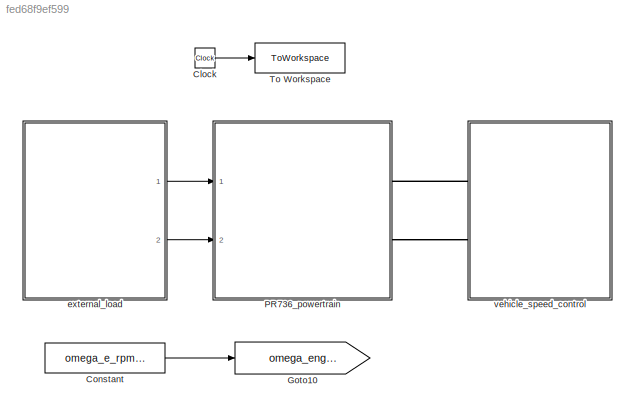
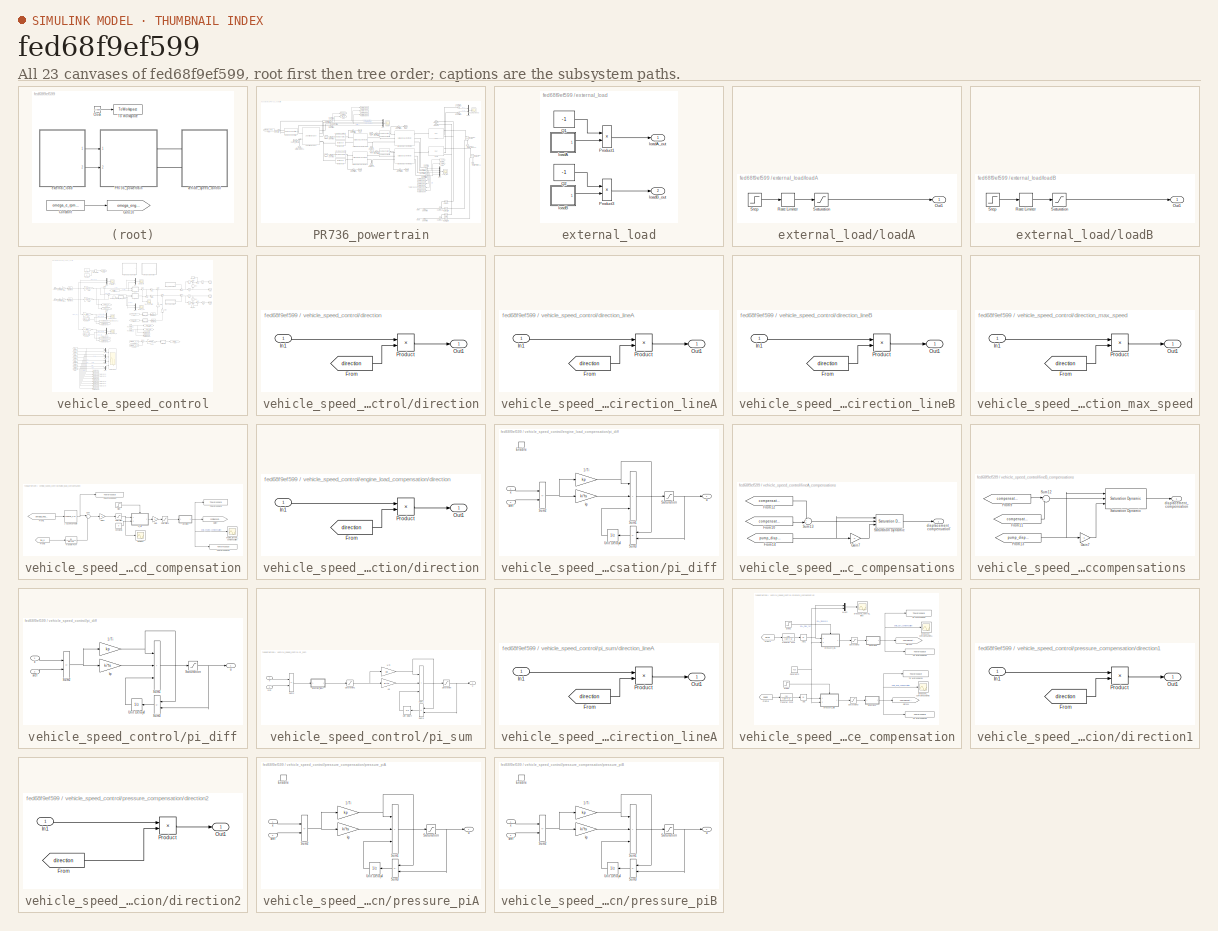
[diagram: thumbnail index - all 23 canvases of the model, root first then tree order]
MODEL slx_fed68f9ef599
KIND model
CONFIG AbsTol = auto
CONFIG EnableMultiTasking = off
CONFIG FixedStep = auto
CONFIG MaxStep = tsample
CONFIG MinStep = auto
CONFIG RelTol = auto
CONFIG SampleTimeConstraint = Unconstrained
CONFIG Solver = ode23tb
CONFIG SolverName = ode23tb
CONFIG StartTime = 0.0
CONFIG StopTime = simulation_length
BLOCK [Clock] Clock
BLOCK [Constant] Constant
  Value = omega_e_rpm_ref
BLOCK [Goto] Goto10
  GotoTag = omega_engine_reference
  TagVisibility = global
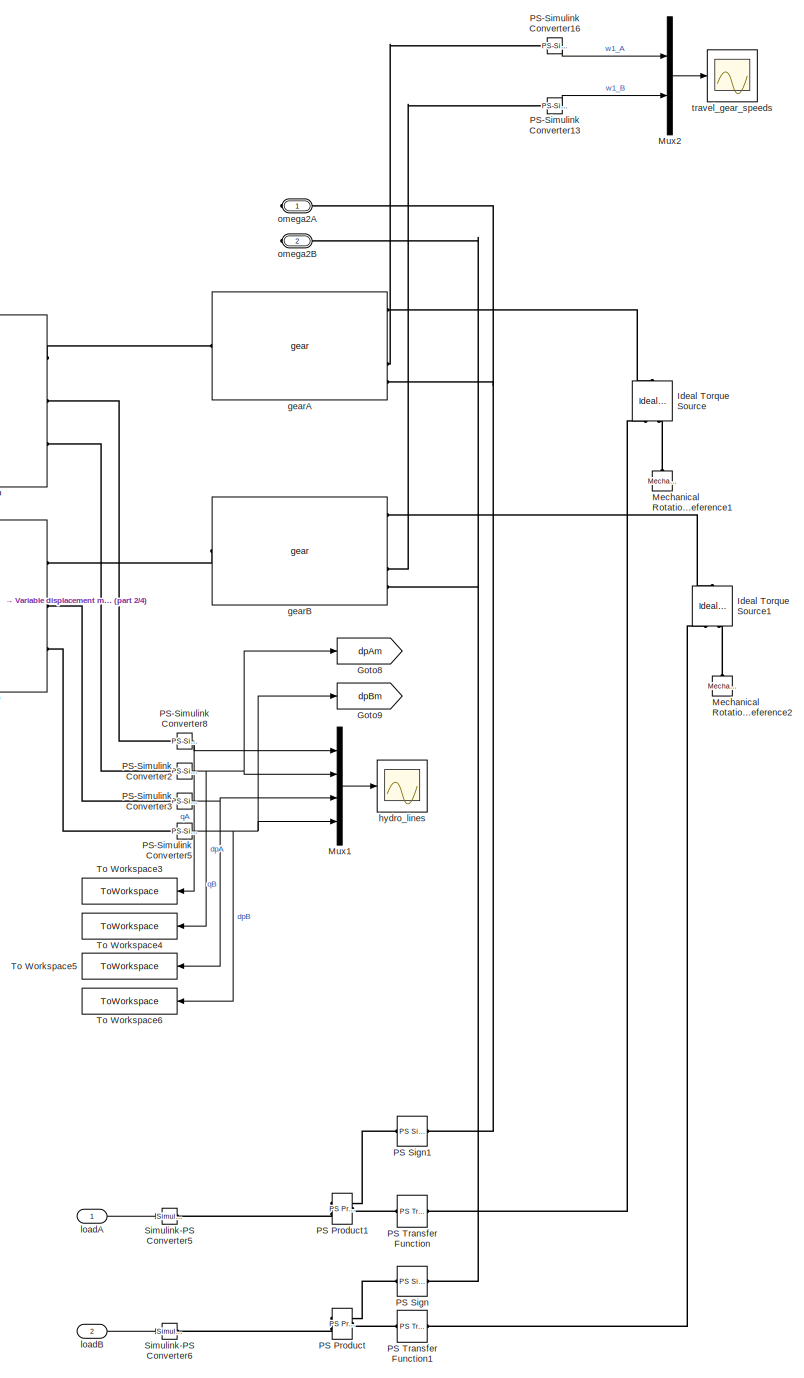
[diagram: PR736_powertrain - part 1/4, right side, full height]
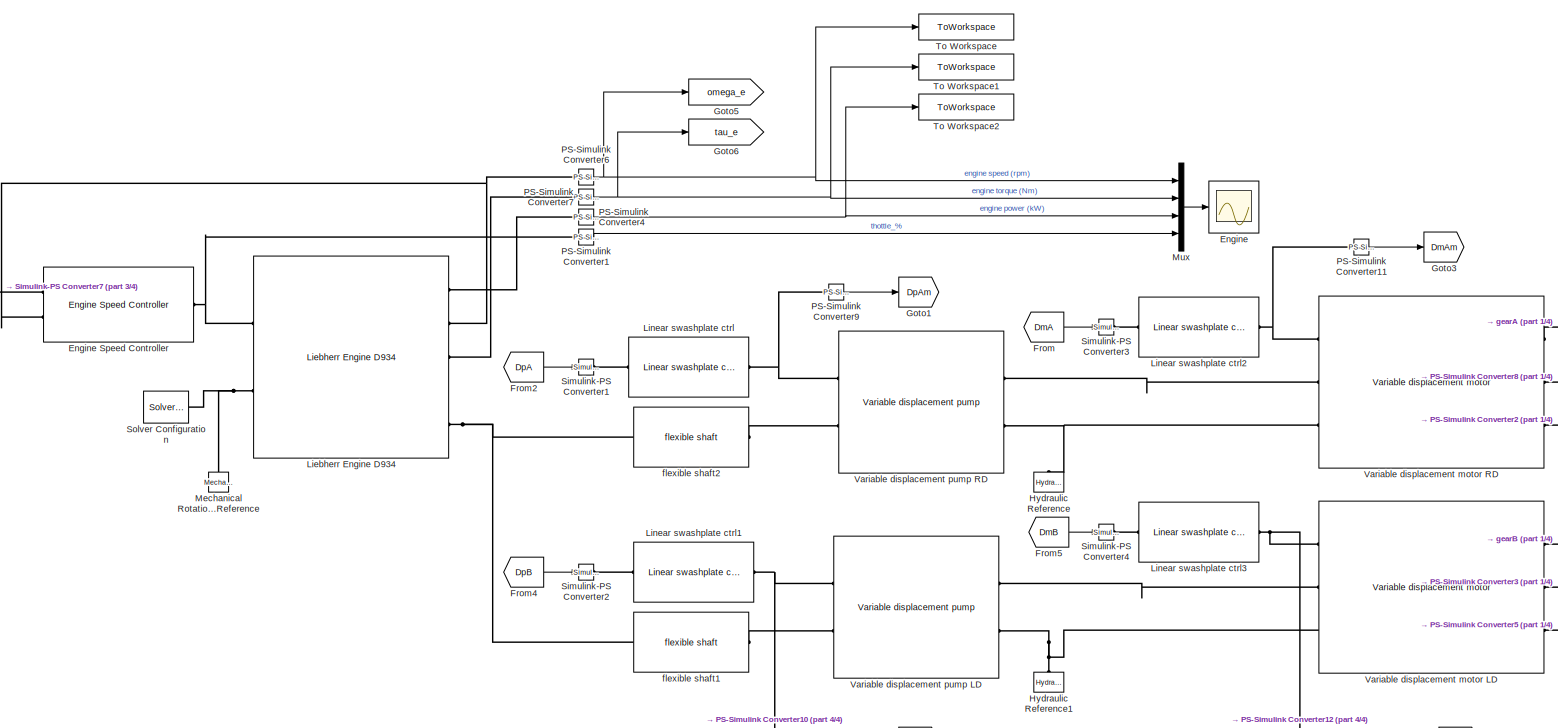
[diagram: PR736_powertrain - part 2/4, top center region]
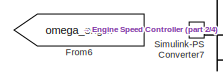
[diagram: PR736_powertrain - part 3/4, top left region]
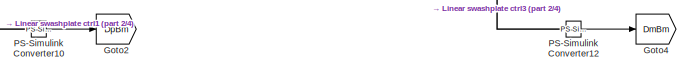
[diagram: PR736_powertrain - part 4/4, central region]
BLOCK [SubSystem] PR736_powertrain
  Ports = [2, 0, 0, 0, 0, 0, 2]
  RequestExecContextInheritance = off
BLOCK [Scope] PR736_powertrain/Engine
  Floating = off
  NumInputPorts = 1
  Ports = [1]
  ScopeSpecificationString = Simulink.scopes.TimeScopeBlockCfg('CurrentConfiguration', extmgr.ConfigurationSet(extmgr.Configuration('Core','General UI',true),extmgr.Configuration('Core','Source UI',true),extmgr.Configuration('Sources','WiredSimulink',true,'SampleTime','tsample'),extmgr.Configuration('Visuals','Time Domain',true,'SerializedDisplays',{struct('MinYLimReal','-1429.96427','MaxYLimReal','7001.35799','YLabelReal',''...<+2034ch>
BLOCK [Reference] PR736_powertrain/Engine Speed Controller  REF=engine_speed_ctrl_lib/Engine Speed
Controller
  Ports = [0, 0, 0, 0, 0, 2, 1]
  SourceBlock = engine_speed_ctrl_lib/Engine Speed\nController
  SourceType = Engine Speed\nController
BLOCK [From] PR736_powertrain/From
  GotoTag = DmA
  TagVisibility = global
BLOCK [From] PR736_powertrain/From2
  GotoTag = DpA
  TagVisibility = global
BLOCK [From] PR736_powertrain/From4
  GotoTag = DpB
  TagVisibility = global
BLOCK [From] PR736_powertrain/From5
  GotoTag = DmB
  TagVisibility = global
BLOCK [From] PR736_powertrain/From6
  GotoTag = omega_engine_reference
  TagVisibility = global
BLOCK [Goto] PR736_powertrain/Goto1
  GotoTag = DpAm
  TagVisibility = global
BLOCK [Goto] PR736_powertrain/Goto2
  GotoTag = DpBm
  TagVisibility = global
BLOCK [Goto] PR736_powertrain/Goto3
  GotoTag = DmAm
  TagVisibility = global
BLOCK [Goto] PR736_powertrain/Goto4
  GotoTag = DmBm
  TagVisibility = global
BLOCK [Goto] PR736_powertrain/Goto5
  GotoTag = omega_e
  TagVisibility = global
BLOCK [Goto] PR736_powertrain/Goto6
  GotoTag = tau_e
  TagVisibility = global
BLOCK [Goto] PR736_powertrain/Goto8
  GotoTag = dpAm
  TagVisibility = global
BLOCK [Goto] PR736_powertrain/Goto9
  GotoTag = dpBm
  TagVisibility = global
BLOCK [Reference] PR736_powertrain/Hydraulic Reference  REF=fl_lib/Hydraulic/Hydraulic Elements/Hydraulic Reference
  NameLocation = right
  Ports = [0, 0, 0, 0, 0, 1]
  SourceBlock = fl_lib/Hydraulic/Hydraulic Elements/Hydraulic Reference
  SourceProductBaseCode = SS
  SourceType = Hydraulic Reference
BLOCK [Reference] PR736_powertrain/Hydraulic Reference1  REF=fl_lib/Hydraulic/Hydraulic Elements/Hydraulic Reference
  NameLocation = right
  Ports = [0, 0, 0, 0, 0, 1]
  SourceBlock = fl_lib/Hydraulic/Hydraulic Elements/Hydraulic Reference
  SourceProductBaseCode = SS
  SourceType = Hydraulic Reference
BLOCK [Reference] PR736_powertrain/Ideal Torque Source  REF=fl_lib/Mechanical/Mechanical Sources/Ideal Torque Source
  NameLocation = right
  Ports = [0, 0, 0, 0, 0, 1, 2]
  SourceBlock = fl_lib/Mechanical/Mechanical Sources/Ideal Torque Source
  SourceProductBaseCode = SS
  SourceType = Ideal Torque Source
BLOCK [Reference] PR736_powertrain/Ideal Torque Source1  REF=fl_lib/Mechanical/Mechanical Sources/Ideal Torque Source
  NameLocation = right
  Ports = [0, 0, 0, 0, 0, 1, 2]
  SourceBlock = fl_lib/Mechanical/Mechanical Sources/Ideal Torque Source
  SourceProductBaseCode = SS
  SourceType = Ideal Torque Source
BLOCK [Reference] PR736_powertrain/Liebherr Engine D934  REF=Liebherr_Engine_D934_lib/Liebherr Engine D934
  Ports = [0, 0, 0, 0, 0, 2, 5]
  SourceBlock = Liebherr_Engine_D934_lib/Liebherr Engine D934
  SourceType = Liebherr Engine D934
BLOCK [Reference] PR736_powertrain/Linear swashplate ctrl  REF=linear_swashplate_ctrl_lib/Linear swashplate
ctrl
  Ports = [0, 0, 0, 0, 0, 1, 1]
  SourceBlock = linear_swashplate_ctrl_lib/Linear swashplate\nctrl
  SourceType = Linear swashplate\nctrl
BLOCK [Reference] PR736_powertrain/Linear swashplate ctrl1  REF=linear_swashplate_ctrl_lib/Linear swashplate
ctrl
  Ports = [0, 0, 0, 0, 0, 1, 1]
  SourceBlock = linear_swashplate_ctrl_lib/Linear swashplate\nctrl
  SourceType = Linear swashplate\nctrl
BLOCK [Reference] PR736_powertrain/Linear swashplate ctrl2  REF=linear_swashplate_ctrl_lib/Linear swashplate
ctrl
  Ports = [0, 0, 0, 0, 0, 1, 1]
  SourceBlock = linear_swashplate_ctrl_lib/Linear swashplate\nctrl
  SourceType = Linear swashplate\nctrl
BLOCK [Reference] PR736_powertrain/Linear swashplate ctrl3  REF=linear_swashplate_ctrl_lib/Linear swashplate
ctrl
  Ports = [0, 0, 0, 0, 0, 1, 1]
  SourceBlock = linear_swashplate_ctrl_lib/Linear swashplate\nctrl
  SourceType = Linear swashplate\nctrl
BLOCK [Reference] PR736_powertrain/Mechanical Rotational Reference  REF=fl_lib/Mechanical/Rotational Elements/Mechanical
Rotational Reference
  NameLocation = right
  Ports = [0, 0, 0, 0, 0, 1]
  SourceBlock = fl_lib/Mechanical/Rotational Elements/Mechanical\nRotational Reference
  SourceProductBaseCode = SS
  SourceType = Mechanical\nRotational Reference
BLOCK [Reference] PR736_powertrain/Mechanical Rotational Reference1  REF=fl_lib/Mechanical/Rotational Elements/Mechanical
Rotational Reference
  NameLocation = right
  Ports = [0, 0, 0, 0, 0, 1]
  SourceBlock = fl_lib/Mechanical/Rotational Elements/Mechanical\nRotational Reference
  SourceProductBaseCode = SS
  SourceType = Mechanical\nRotational Reference
BLOCK [Reference] PR736_powertrain/Mechanical Rotational Reference2  REF=fl_lib/Mechanical/Rotational Elements/Mechanical
Rotational Reference
  NameLocation = right
  Ports = [0, 0, 0, 0, 0, 1]
  SourceBlock = fl_lib/Mechanical/Rotational Elements/Mechanical\nRotational Reference
  SourceProductBaseCode = SS
  SourceType = Mechanical\nRotational Reference
BLOCK [Mux] PR736_powertrain/Mux
  DisplayOption = bar
  Ports = [4, 1]
BLOCK [Mux] PR736_powertrain/Mux1
  DisplayOption = bar
  Ports = [4, 1]
BLOCK [Mux] PR736_powertrain/Mux2
  DisplayOption = bar
  Inputs = 2
  Ports = [2, 1]
BLOCK [Reference] PR736_powertrain/PS Product  REF=fl_lib/Physical Signals/Functions/PS Product
  Ports = [0, 0, 0, 0, 0, 2, 1]
  SourceBlock = fl_lib/Physical Signals/Functions/PS Product
  SourceProductBaseCode = SS
  SourceType = PS Product
BLOCK [Reference] PR736_powertrain/PS Product1  REF=fl_lib/Physical Signals/Functions/PS Product
  Ports = [0, 0, 0, 0, 0, 2, 1]
  SourceBlock = fl_lib/Physical Signals/Functions/PS Product
  SourceProductBaseCode = SS
  SourceType = PS Product
BLOCK [Reference] PR736_powertrain/PS Sign  REF=fl_lib/Physical Signals/Nonlinear Operators/PS Sign
  NameLocation = top
  Ports = [0, 0, 0, 0, 0, 1, 1]
  SourceBlock = fl_lib/Physical Signals/Nonlinear Operators/PS Sign
  SourceProductBaseCode = SS
  SourceType = PS Sign
BLOCK [Reference] PR736_powertrain/PS Sign1  REF=fl_lib/Physical Signals/Nonlinear Operators/PS Sign
  NameLocation = top
  Ports = [0, 0, 0, 0, 0, 1, 1]
  SourceBlock = fl_lib/Physical Signals/Nonlinear Operators/PS Sign
  SourceProductBaseCode = SS
  SourceType = PS Sign
BLOCK [Reference] PR736_powertrain/PS Transfer Function  REF=fl_lib/Physical Signals/Linear Operators/PS Transfer Function
  Ports = [0, 0, 0, 0, 0, 1, 1]
  SourceBlock = fl_lib/Physical Signals/Linear Operators/PS Transfer Function
  SourceProductBaseCode = SS
  SourceType = PS Transfer Function
BLOCK [Reference] PR736_powertrain/PS Transfer Function1  REF=fl_lib/Physical Signals/Linear Operators/PS Transfer Function
  Ports = [0, 0, 0, 0, 0, 1, 1]
  SourceBlock = fl_lib/Physical Signals/Linear Operators/PS Transfer Function
  SourceProductBaseCode = SS
  SourceType = PS Transfer Function
BLOCK [Reference] PR736_powertrain/PS-Simulink Converter1  REF=nesl_utility/PS-Simulink
Converter
  Ports = [0, 1, 0, 0, 0, 1]
  SourceBlock = nesl_utility/PS-Simulink\nConverter
  SourceProductBaseCode = SS
  SourceType = PS-Simulink\nConverter
BLOCK [Reference] PR736_powertrain/PS-Simulink Converter10  REF=nesl_utility/PS-Simulink
Converter
  Ports = [0, 1, 0, 0, 0, 1]
  SourceBlock = nesl_utility/PS-Simulink\nConverter
  SourceProductBaseCode = SS
  SourceType = PS-Simulink\nConverter
BLOCK [Reference] PR736_powertrain/PS-Simulink Converter11  REF=nesl_utility/PS-Simulink
Converter
  Ports = [0, 1, 0, 0, 0, 1]
  SourceBlock = nesl_utility/PS-Simulink\nConverter
  SourceProductBaseCode = SS
  SourceType = PS-Simulink\nConverter
BLOCK [Reference] PR736_powertrain/PS-Simulink Converter12  REF=nesl_utility/PS-Simulink
Converter
  Ports = [0, 1, 0, 0, 0, 1]
  SourceBlock = nesl_utility/PS-Simulink\nConverter
  SourceProductBaseCode = SS
  SourceType = PS-Simulink\nConverter
BLOCK [Reference] PR736_powertrain/PS-Simulink Converter13  REF=nesl_utility/PS-Simulink
Converter
  Ports = [0, 1, 0, 0, 0, 1]
  SourceBlock = nesl_utility/PS-Simulink\nConverter
  SourceProductBaseCode = SS
  SourceType = PS-Simulink\nConverter
BLOCK [Reference] PR736_powertrain/PS-Simulink Converter16  REF=nesl_utility/PS-Simulink
Converter
  Ports = [0, 1, 0, 0, 0, 1]
  SourceBlock = nesl_utility/PS-Simulink\nConverter
  SourceProductBaseCode = SS
  SourceType = PS-Simulink\nConverter
BLOCK [Reference] PR736_powertrain/PS-Simulink Converter2  REF=nesl_utility/PS-Simulink
Converter
  Ports = [0, 1, 0, 0, 0, 1]
  SourceBlock = nesl_utility/PS-Simulink\nConverter
  SourceProductBaseCode = SS
  SourceType = PS-Simulink\nConverter
BLOCK [Reference] PR736_powertrain/PS-Simulink Converter3  REF=nesl_utility/PS-Simulink
Converter
  Ports = [0, 1, 0, 0, 0, 1]
  SourceBlock = nesl_utility/PS-Simulink\nConverter
  SourceProductBaseCode = SS
  SourceType = PS-Simulink\nConverter
BLOCK [Reference] PR736_powertrain/PS-Simulink Converter4  REF=nesl_utility/PS-Simulink
Converter
  Ports = [0, 1, 0, 0, 0, 1]
  SourceBlock = nesl_utility/PS-Simulink\nConverter
  SourceProductBaseCode = SS
  SourceType = PS-Simulink\nConverter
BLOCK [Reference] PR736_powertrain/PS-Simulink Converter5  REF=nesl_utility/PS-Simulink
Converter
  Ports = [0, 1, 0, 0, 0, 1]
  SourceBlock = nesl_utility/PS-Simulink\nConverter
  SourceProductBaseCode = SS
  SourceType = PS-Simulink\nConverter
BLOCK [Reference] PR736_powertrain/PS-Simulink Converter6  REF=nesl_utility/PS-Simulink
Converter
  Ports = [0, 1, 0, 0, 0, 1]
  SourceBlock = nesl_utility/PS-Simulink\nConverter
  SourceProductBaseCode = SS
  SourceType = PS-Simulink\nConverter
BLOCK [Reference] PR736_powertrain/PS-Simulink Converter7  REF=nesl_utility/PS-Simulink
Converter
  Ports = [0, 1, 0, 0, 0, 1]
  SourceBlock = nesl_utility/PS-Simulink\nConverter
  SourceProductBaseCode = SS
  SourceType = PS-Simulink\nConverter
BLOCK [Reference] PR736_powertrain/PS-Simulink Converter8  REF=nesl_utility/PS-Simulink
Converter
  Ports = [0, 1, 0, 0, 0, 1]
  SourceBlock = nesl_utility/PS-Simulink\nConverter
  SourceProductBaseCode = SS
  SourceType = PS-Simulink\nConverter
BLOCK [Reference] PR736_powertrain/PS-Simulink Converter9  REF=nesl_utility/PS-Simulink
Converter
  Ports = [0, 1, 0, 0, 0, 1]
  SourceBlock = nesl_utility/PS-Simulink\nConverter
  SourceProductBaseCode = SS
  SourceType = PS-Simulink\nConverter
BLOCK [Reference] PR736_powertrain/Simulink-PS Converter1  REF=nesl_utility/Simulink-PS
Converter
  Ports = [1, 0, 0, 0, 0, 0, 1]
  SourceBlock = nesl_utility/Simulink-PS\nConverter
  SourceProductBaseCode = SS
  SourceType = Simulink-PS\nConverter
BLOCK [Reference] PR736_powertrain/Simulink-PS Converter2  REF=nesl_utility/Simulink-PS
Converter
  Ports = [1, 0, 0, 0, 0, 0, 1]
  SourceBlock = nesl_utility/Simulink-PS\nConverter
  SourceProductBaseCode = SS
  SourceType = Simulink-PS\nConverter
BLOCK [Reference] PR736_powertrain/Simulink-PS Converter3  REF=nesl_utility/Simulink-PS
Converter
  Ports = [1, 0, 0, 0, 0, 0, 1]
  SourceBlock = nesl_utility/Simulink-PS\nConverter
  SourceProductBaseCode = SS
  SourceType = Simulink-PS\nConverter
BLOCK [Reference] PR736_powertrain/Simulink-PS Converter4  REF=nesl_utility/Simulink-PS
Converter
  Ports = [1, 0, 0, 0, 0, 0, 1]
  SourceBlock = nesl_utility/Simulink-PS\nConverter
  SourceProductBaseCode = SS
  SourceType = Simulink-PS\nConverter
BLOCK [Reference] PR736_powertrain/Simulink-PS Converter5  REF=nesl_utility/Simulink-PS
Converter
  Ports = [1, 0, 0, 0, 0, 0, 1]
  SourceBlock = nesl_utility/Simulink-PS\nConverter
  SourceProductBaseCode = SS
  SourceType = Simulink-PS\nConverter
BLOCK [Reference] PR736_powertrain/Simulink-PS Converter6  REF=nesl_utility/Simulink-PS
Converter
  Ports = [1, 0, 0, 0, 0, 0, 1]
  SourceBlock = nesl_utility/Simulink-PS\nConverter
  SourceProductBaseCode = SS
  SourceType = Simulink-PS\nConverter
BLOCK [Reference] PR736_powertrain/Simulink-PS Converter7  REF=nesl_utility/Simulink-PS
Converter
  Ports = [1, 0, 0, 0, 0, 0, 1]
  SourceBlock = nesl_utility/Simulink-PS\nConverter
  SourceProductBaseCode = SS
  SourceType = Simulink-PS\nConverter
BLOCK [Reference] PR736_powertrain/Solver Configuration  REF=nesl_utility/Solver
Configuration
  Ports = [0, 0, 0, 0, 0, 0, 1]
  SourceBlock = nesl_utility/Solver\nConfiguration
  SourceProductBaseCode = SS
  SourceType = Solver\nConfiguration
BLOCK [ToWorkspace] PR736_powertrain/To Workspace
  FixptAsFi = on
  MaxDataPoints = Nsample
  Ports = [1]
  SampleTime = tsample
  VariableName = engine_speed_sim
BLOCK [ToWorkspace] PR736_powertrain/To Workspace1
  FixptAsFi = on
  MaxDataPoints = Nsample
  Ports = [1]
  SampleTime = tsample
  VariableName = engine_torque_sim
BLOCK [ToWorkspace] PR736_powertrain/To Workspace2
  FixptAsFi = on
  MaxDataPoints = Nsample
  Ports = [1]
  SampleTime = tsample
  VariableName = engine_power_sim
BLOCK [ToWorkspace] PR736_powertrain/To Workspace3
  FixptAsFi = on
  MaxDataPoints = Nsample
  NameLocation = top
  Ports = [1]
  SampleTime = tsample
  VariableName = qA_sim
BLOCK [ToWorkspace] PR736_powertrain/To Workspace4
  FixptAsFi = on
  MaxDataPoints = Nsample
  NameLocation = top
  Ports = [1]
  SampleTime = tsample
  VariableName = dpA_sim
BLOCK [ToWorkspace] PR736_powertrain/To Workspace5
  FixptAsFi = on
  MaxDataPoints = Nsample
  NameLocation = top
  Ports = [1]
  SampleTime = tsample
  VariableName = qB_sim
BLOCK [ToWorkspace] PR736_powertrain/To Workspace6
  FixptAsFi = on
  MaxDataPoints = Nsample
  NameLocation = top
  Ports = [1]
  SampleTime = tsample
  VariableName = dpB_sim
BLOCK [Reference] PR736_powertrain/Variable displacement motor LD  REF=variable_displacement_motor_lib/Variable
displacement motor
  Ports = [0, 0, 0, 0, 0, 3, 3]
  SourceBlock = variable_displacement_motor_lib/Variable\ndisplacement motor
  SourceType = Variable\ndisplacement motor
BLOCK [Reference] PR736_powertrain/Variable displacement motor RD  REF=variable_displacement_motor_lib/Variable
displacement motor
  Ports = [0, 0, 0, 0, 0, 3, 3]
  SourceBlock = variable_displacement_motor_lib/Variable\ndisplacement motor
  SourceType = Variable\ndisplacement motor
BLOCK [Reference] PR736_powertrain/Variable displacement pump LD  REF=variable_displacement_pump_lib/Variable
displacement pump
  Ports = [0, 0, 0, 0, 0, 2, 2]
  SourceBlock = variable_displacement_pump_lib/Variable\ndisplacement pump
  SourceType = Variable\ndisplacement pump
BLOCK [Reference] PR736_powertrain/Variable displacement pump RD  REF=variable_displacement_pump_lib/Variable
displacement pump
  Ports = [0, 0, 0, 0, 0, 2, 2]
  SourceBlock = variable_displacement_pump_lib/Variable\ndisplacement pump
  SourceType = Variable\ndisplacement pump
BLOCK [Reference] PR736_powertrain/flexible shaft1  REF=flexshaft_lib/flexible shaft
  Ports = [0, 0, 0, 0, 0, 1, 1]
  SourceBlock = flexshaft_lib/flexible shaft
  SourceType = flexible shaft
BLOCK [Reference] PR736_powertrain/flexible shaft2  REF=flexshaft_lib/flexible shaft
  Ports = [0, 0, 0, 0, 0, 1, 1]
  SourceBlock = flexshaft_lib/flexible shaft
  SourceType = flexible shaft
BLOCK [Reference] PR736_powertrain/gearA  REF=gear_lib/gear
  Ports = [0, 0, 0, 0, 0, 1, 5]
  SourceBlock = gear_lib/gear
  SourceType = gear
BLOCK [Reference] PR736_powertrain/gearB  REF=gear_lib/gear
  Ports = [0, 0, 0, 0, 0, 1, 5]
  SourceBlock = gear_lib/gear
  SourceType = gear
BLOCK [Scope] PR736_powertrain/hydro_lines
  Floating = off
  NumInputPorts = 1
  Ports = [1]
  ScopeSpecificationString = Simulink.scopes.TimeScopeBlockCfg('CurrentConfiguration', extmgr.ConfigurationSet(extmgr.Configuration('Core','General UI',true),extmgr.Configuration('Core','Source UI',true),extmgr.Configuration('Sources','WiredSimulink',true,'SampleTime','tsample','DataLoggingVariableName','ScopeData1'),extmgr.Configuration('Visuals','Time Domain',true,'SerializedDisplays',{struct('MinYLimReal','-53.73349','MaxY...<+1985ch>
BLOCK [Inport] PR736_powertrain/loadA
BLOCK [Inport] PR736_powertrain/loadB
  Port = 2
BLOCK [PMIOPort] PR736_powertrain/omega2A
  Side = Right
BLOCK [PMIOPort] PR736_powertrain/omega2B
  Port = 2
  Side = Right
BLOCK [Scope] PR736_powertrain/travel_gear_speeds
  Floating = off
  NumInputPorts = 1
  Ports = [1]
  ScopeSpecificationString = Simulink.scopes.TimeScopeBlockCfg('CurrentConfiguration', extmgr.ConfigurationSet(extmgr.Configuration('Core','General UI',true),extmgr.Configuration('Core','Source UI',true),extmgr.Configuration('Sources','WiredSimulink',true,'SampleTime','tsample','DataLoggingVariableName','ScopeData3'),extmgr.Configuration('Visuals','Time Domain',true,'SerializedDisplays',{struct('MinYLimReal','-1115.93165','Ma...<+1752ch>
BLOCK [ToWorkspace] To Workspace
  FixptAsFi = on
  MaxDataPoints = Nsample
  Ports = [1]
  SampleTime = tsample
  VariableName = time
BLOCK [SubSystem] external_load
  Ports = [0, 2]
  RequestExecContextInheritance = off
BLOCK [Product] external_load/Product1
  Ports = [2, 1]
BLOCK [Product] external_load/Product3
  Ports = [2, 1]
BLOCK [Constant] external_load/Q1
  Value = -1
BLOCK [Constant] external_load/Q2
  Value = -1
BLOCK [SubSystem] external_load/loadA
  Ports = [0, 1]
  RequestExecContextInheritance = off
BLOCK [Outport] external_load/loadA/Out1
BLOCK [RateLimiter] external_load/loadA/Rate Limiter
  FallingSlewLimit = -tau_load_max/2
  RisingSlewLimit = tau_load_max/2
  SampleTimeMode = inherited
BLOCK [Saturate] external_load/loadA/Saturation
  LowerLimit = -abs(tau_load)
  UpperLimit = abs(tau_load)
BLOCK [Step] external_load/loadA/Step
  After = tau_load
  SampleTime = 0
  Time = 5
BLOCK [Outport] external_load/loadA_out
BLOCK [SubSystem] external_load/loadB
  Ports = [0, 1]
  RequestExecContextInheritance = off
BLOCK [Outport] external_load/loadB/Out1
BLOCK [RateLimiter] external_load/loadB/Rate Limiter
  FallingSlewLimit = -tau_load_max/2
  RisingSlewLimit = tau_load_max/2
  SampleTimeMode = inherited
BLOCK [Saturate] external_load/loadB/Saturation
  LowerLimit = -abs(tau_load)
  UpperLimit = abs(tau_load)
BLOCK [Step] external_load/loadB/Step
  After = tau_load
  SampleTime = 0
  Time = 5
BLOCK [Outport] external_load/loadB_out
  Port = 2
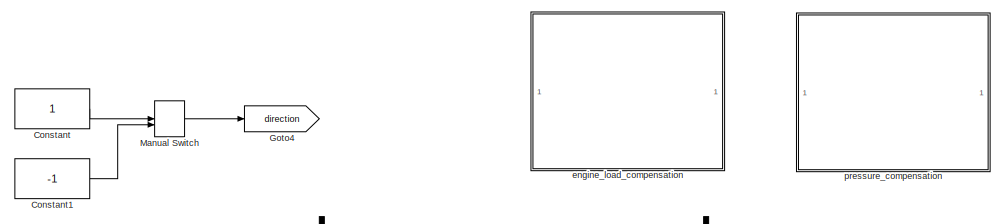
[diagram: vehicle_speed_control - part 1/5, top center region]
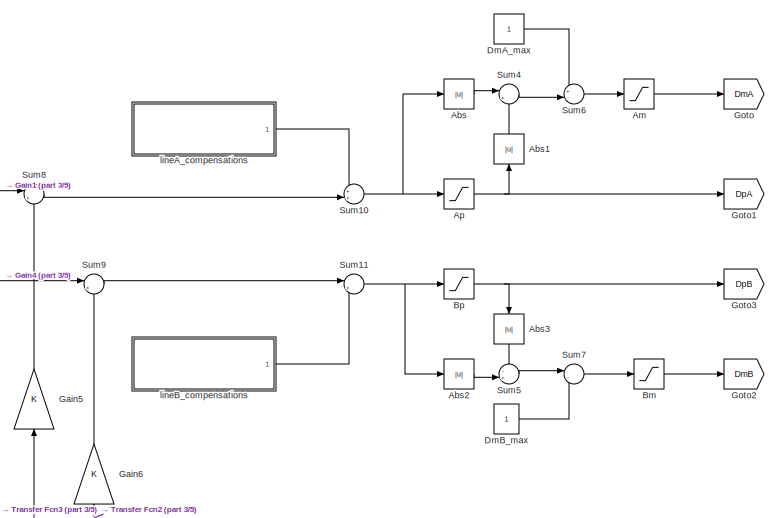
[diagram: vehicle_speed_control - part 2/5, top right region]
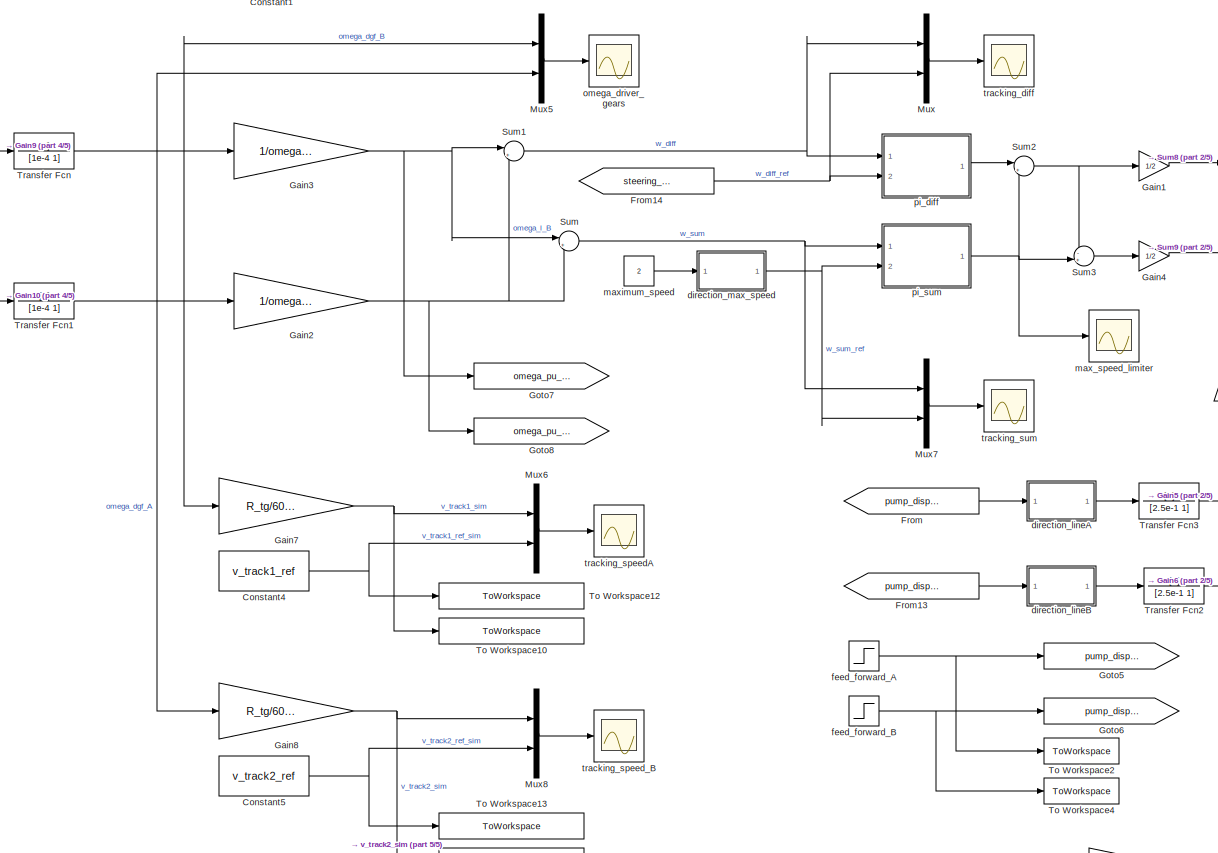
[diagram: vehicle_speed_control - part 3/5, central region]
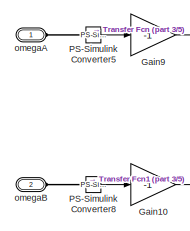
[diagram: vehicle_speed_control - part 4/5, top left region]
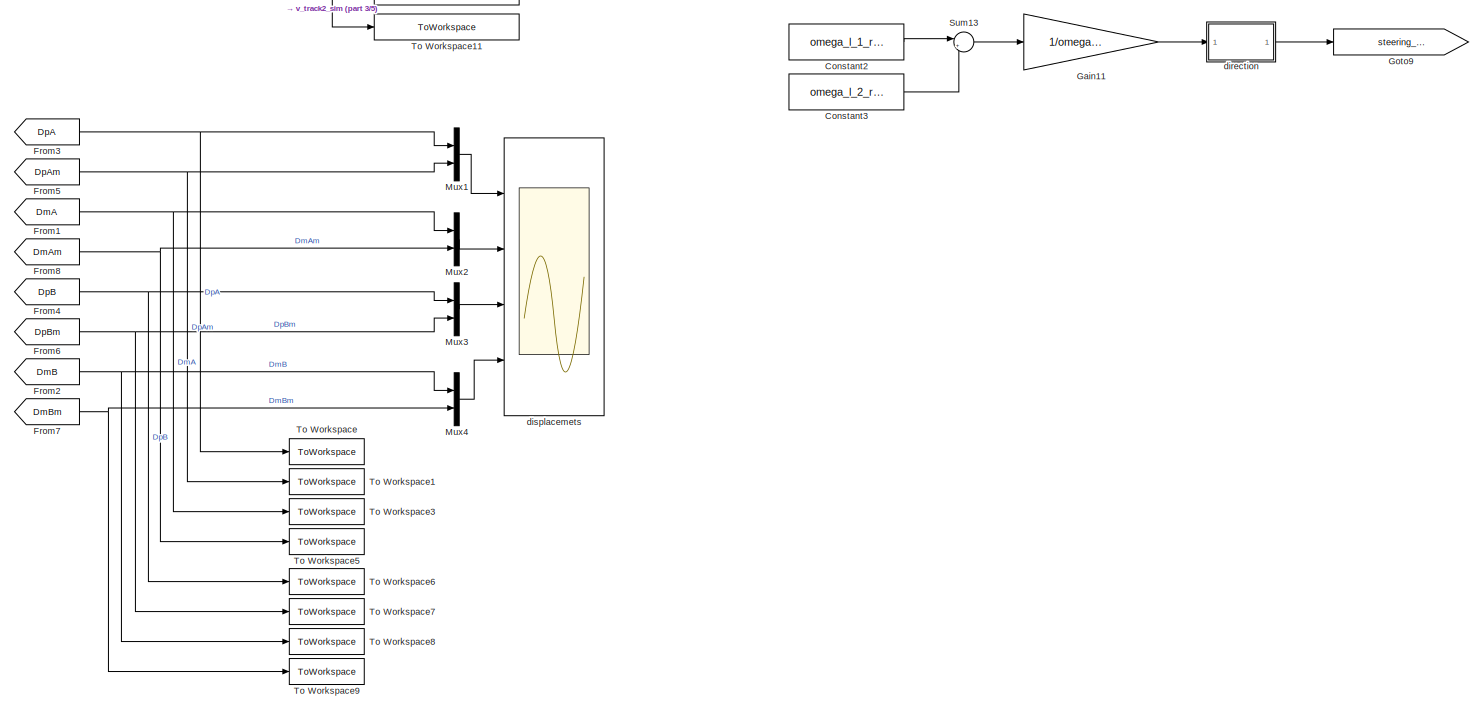
[diagram: vehicle_speed_control - part 5/5, bottom center region]
BLOCK [SubSystem] vehicle_speed_control
  Ports = [0, 0, 0, 0, 0, 2]
  RequestExecContextInheritance = off
BLOCK [Abs] vehicle_speed_control/Abs
  SaturateOnIntegerOverflow = off
BLOCK [Abs] vehicle_speed_control/Abs1
  NameLocation = right
  SaturateOnIntegerOverflow = off
BLOCK [Abs] vehicle_speed_control/Abs2
  SaturateOnIntegerOverflow = off
BLOCK [Abs] vehicle_speed_control/Abs3
  NameLocation = left
  SaturateOnIntegerOverflow = off
BLOCK [Saturate] vehicle_speed_control/Am
  LowerLimit = 0.2
  UpperLimit = 1
BLOCK [Saturate] vehicle_speed_control/Ap
  LowerLimit = -1
  UpperLimit = 1
BLOCK [Saturate] vehicle_speed_control/Bm
  LowerLimit = 0.2
  UpperLimit = 1
BLOCK [Saturate] vehicle_speed_control/Bp
  LowerLimit = -1
  UpperLimit = 1
BLOCK [Constant] vehicle_speed_control/Constant
BLOCK [Constant] vehicle_speed_control/Constant1
  Value = -1
BLOCK [Constant] vehicle_speed_control/Constant2
  Value = omega_l_1_ref_rpm
BLOCK [Constant] vehicle_speed_control/Constant3
  Value = omega_l_2_ref_rpm
BLOCK [Constant] vehicle_speed_control/Constant4
  Value = v_track1_ref
BLOCK [Constant] vehicle_speed_control/Constant5
  Value = v_track2_ref
BLOCK [Constant] vehicle_speed_control/DmA_max
BLOCK [Constant] vehicle_speed_control/DmB_max
BLOCK [From] vehicle_speed_control/From
  GotoTag = pump_displacement_A
  TagVisibility = global
BLOCK [From] vehicle_speed_control/From1
  GotoTag = DmA
  TagVisibility = global
BLOCK [From] vehicle_speed_control/From13
  GotoTag = pump_displacement_B
  TagVisibility = global
BLOCK [From] vehicle_speed_control/From14
  GotoTag = steering_reference
  TagVisibility = global
BLOCK [From] vehicle_speed_control/From2
  GotoTag = DmB
  TagVisibility = global
BLOCK [From] vehicle_speed_control/From3
  GotoTag = DpA
  TagVisibility = global
BLOCK [From] vehicle_speed_control/From4
  GotoTag = DpB
  TagVisibility = global
BLOCK [From] vehicle_speed_control/From5
  GotoTag = DpAm
  TagVisibility = global
BLOCK [From] vehicle_speed_control/From6
  GotoTag = DpBm
  TagVisibility = global
BLOCK [From] vehicle_speed_control/From7
  GotoTag = DmBm
  TagVisibility = global
BLOCK [From] vehicle_speed_control/From8
  GotoTag = DmAm
  TagVisibility = global
BLOCK [Gain] vehicle_speed_control/Gain1
  Gain = 1/2
BLOCK [Gain] vehicle_speed_control/Gain10
  Gain = -1
BLOCK [Gain] vehicle_speed_control/Gain11
  Gain = 1/omega_l_max_rpm
BLOCK [Gain] vehicle_speed_control/Gain2
  Gain = 1/omega_l_max_rpm
BLOCK [Gain] vehicle_speed_control/Gain3
  Gain = 1/omega_l_max_rpm
BLOCK [Gain] vehicle_speed_control/Gain4
  Gain = 1/2
BLOCK [Gain] vehicle_speed_control/Gain5
  NameLocation = right
BLOCK [Gain] vehicle_speed_control/Gain6
  NameLocation = right
BLOCK [Gain] vehicle_speed_control/Gain7
  Gain = R_tg/60*2*pi*3.6
BLOCK [Gain] vehicle_speed_control/Gain8
  Gain = R_tg/60*2*pi*3.6
BLOCK [Gain] vehicle_speed_control/Gain9
  Gain = -1
BLOCK [Goto] vehicle_speed_control/Goto
  GotoTag = DmA
  TagVisibility = global
BLOCK [Goto] vehicle_speed_control/Goto1
  GotoTag = DpA
  TagVisibility = global
BLOCK [Goto] vehicle_speed_control/Goto2
  GotoTag = DmB
  TagVisibility = global
BLOCK [Goto] vehicle_speed_control/Goto3
  GotoTag = DpB
  TagVisibility = global
BLOCK [Goto] vehicle_speed_control/Goto4
  GotoTag = direction
  TagVisibility = global
BLOCK [Goto] vehicle_speed_control/Goto5
  GotoTag = pump_displacement_A
  TagVisibility = global
BLOCK [Goto] vehicle_speed_control/Goto6
  GotoTag = pump_displacement_B
  TagVisibility = global
BLOCK [Goto] vehicle_speed_control/Goto7
  GotoTag = omega_pu_m_A
  TagVisibility = global
BLOCK [Goto] vehicle_speed_control/Goto8
  GotoTag = omega_pu_m_B
  TagVisibility = global
BLOCK [Goto] vehicle_speed_control/Goto9
  GotoTag = steering_reference
  TagVisibility = global
BLOCK [ManualSwitch] vehicle_speed_control/Manual Switch
BLOCK [Mux] vehicle_speed_control/Mux
  DisplayOption = bar
  Inputs = 2
  Ports = [2, 1]
BLOCK [Mux] vehicle_speed_control/Mux1
  DisplayOption = bar
  Inputs = 2
  Ports = [2, 1]
BLOCK [Mux] vehicle_speed_control/Mux2
  DisplayOption = bar
  Inputs = 2
  Ports = [2, 1]
BLOCK [Mux] vehicle_speed_control/Mux3
  DisplayOption = bar
  Inputs = 2
  Ports = [2, 1]
BLOCK [Mux] vehicle_speed_control/Mux4
  DisplayOption = bar
  Inputs = 2
  Ports = [2, 1]
BLOCK [Mux] vehicle_speed_control/Mux5
  DisplayOption = bar
  Inputs = 2
  Ports = [2, 1]
BLOCK [Mux] vehicle_speed_control/Mux6
  DisplayOption = bar
  Inputs = 2
  Ports = [2, 1]
BLOCK [Mux] vehicle_speed_control/Mux7
  DisplayOption = bar
  Inputs = 2
  Ports = [2, 1]
BLOCK [Mux] vehicle_speed_control/Mux8
  DisplayOption = bar
  Inputs = 2
  Ports = [2, 1]
BLOCK [Reference] vehicle_speed_control/PS-Simulink Converter5  REF=nesl_utility/PS-Simulink
Converter
  Ports = [0, 1, 0, 0, 0, 1]
  SourceBlock = nesl_utility/PS-Simulink\nConverter
  SourceProductBaseCode = SS
  SourceType = PS-Simulink\nConverter
BLOCK [Reference] vehicle_speed_control/PS-Simulink Converter8  REF=nesl_utility/PS-Simulink
Converter
  Ports = [0, 1, 0, 0, 0, 1]
  SourceBlock = nesl_utility/PS-Simulink\nConverter
  SourceProductBaseCode = SS
  SourceType = PS-Simulink\nConverter
BLOCK [Sum] vehicle_speed_control/Sum
  Inputs = |++
  Ports = [2, 1]
BLOCK [Sum] vehicle_speed_control/Sum1
  Inputs = |+-
  Ports = [2, 1]
BLOCK [Sum] vehicle_speed_control/Sum10
  Inputs = ++|
  Ports = [2, 1]
BLOCK [Sum] vehicle_speed_control/Sum11
  Inputs = |++
  Ports = [2, 1]
BLOCK [Sum] vehicle_speed_control/Sum13
  Inputs = |+-
  NameLocation = top
  Ports = [2, 1]
BLOCK [Sum] vehicle_speed_control/Sum2
  Inputs = |++
  Ports = [2, 1]
BLOCK [Sum] vehicle_speed_control/Sum3
  Inputs = -+|
  Ports = [2, 1]
BLOCK [Sum] vehicle_speed_control/Sum4
  Inputs = |+-
  Ports = [2, 1]
BLOCK [Sum] vehicle_speed_control/Sum5
  Inputs = -+|
  NameLocation = top
  Ports = [2, 1]
BLOCK [Sum] vehicle_speed_control/Sum6
  Inputs = +-|
  NameLocation = top
  Ports = [2, 1]
BLOCK [Sum] vehicle_speed_control/Sum7
  Inputs = |-+
  Ports = [2, 1]
BLOCK [Sum] vehicle_speed_control/Sum8
  Inputs = |++
  Ports = [2, 1]
BLOCK [Sum] vehicle_speed_control/Sum9
  Inputs = |++
  Ports = [2, 1]
BLOCK [ToWorkspace] vehicle_speed_control/To Workspace
  FixptAsFi = on
  MaxDataPoints = Nsample
  Ports = [1]
  SampleTime = tsample
  VariableName = dp1
BLOCK [ToWorkspace] vehicle_speed_control/To Workspace1
  FixptAsFi = on
  MaxDataPoints = Nsample
  Ports = [1]
  SampleTime = tsample
  VariableName = dp1m
BLOCK [ToWorkspace] vehicle_speed_control/To Workspace10
  FixptAsFi = on
  MaxDataPoints = Nsample
  Ports = [1]
  SampleTime = tsample
  VariableName = v_track1_sim
BLOCK [ToWorkspace] vehicle_speed_control/To Workspace11
  FixptAsFi = on
  MaxDataPoints = Nsample
  Ports = [1]
  SampleTime = tsample
  VariableName = v_track2_sim
BLOCK [ToWorkspace] vehicle_speed_control/To Workspace12
  FixptAsFi = on
  MaxDataPoints = Nsample
  Ports = [1]
  SampleTime = tsample
  VariableName = v_track1_ref_sim
BLOCK [ToWorkspace] vehicle_speed_control/To Workspace13
  FixptAsFi = on
  MaxDataPoints = Nsample
  Ports = [1]
  SampleTime = tsample
  VariableName = v_track2_ref_sim
BLOCK [ToWorkspace] vehicle_speed_control/To Workspace2
  FixptAsFi = on
  MaxDataPoints = Nsample
  Ports = [1]
  SampleTime = tsample
  VariableName = ff_d1
BLOCK [ToWorkspace] vehicle_speed_control/To Workspace3
  FixptAsFi = on
  MaxDataPoints = Nsample
  Ports = [1]
  SampleTime = tsample
  VariableName = dm1
BLOCK [ToWorkspace] vehicle_speed_control/To Workspace4
  FixptAsFi = on
  MaxDataPoints = Nsample
  Ports = [1]
  SampleTime = tsample
  VariableName = ff_d2
BLOCK [ToWorkspace] vehicle_speed_control/To Workspace5
  FixptAsFi = on
  MaxDataPoints = Nsample
  Ports = [1]
  SampleTime = tsample
  VariableName = dm1m
BLOCK [ToWorkspace] vehicle_speed_control/To Workspace6
  FixptAsFi = on
  MaxDataPoints = Nsample
  Ports = [1]
  SampleTime = tsample
  VariableName = dp2
BLOCK [ToWorkspace] vehicle_speed_control/To Workspace7
  FixptAsFi = on
  MaxDataPoints = Nsample
  Ports = [1]
  SampleTime = tsample
  VariableName = dp2m
BLOCK [ToWorkspace] vehicle_speed_control/To Workspace8
  FixptAsFi = on
  MaxDataPoints = Nsample
  Ports = [1]
  SampleTime = tsample
  VariableName = dm2
BLOCK [ToWorkspace] vehicle_speed_control/To Workspace9
  FixptAsFi = on
  MaxDataPoints = Nsample
  Ports = [1]
  SampleTime = tsample
  VariableName = dm2m
BLOCK [TransferFcn] vehicle_speed_control/Transfer Fcn
  Denominator = [1e-4 1]
BLOCK [TransferFcn] vehicle_speed_control/Transfer Fcn1
  Denominator = [1e-4 1]
BLOCK [TransferFcn] vehicle_speed_control/Transfer Fcn2
  Denominator = [2.5e-1 1]
BLOCK [TransferFcn] vehicle_speed_control/Transfer Fcn3
  Denominator = [2.5e-1 1]
BLOCK [SubSystem] vehicle_speed_control/direction
  Ports = [1, 1]
  RequestExecContextInheritance = off
BLOCK [From] vehicle_speed_control/direction/From
  GotoTag = direction
  TagVisibility = global
BLOCK [Inport] vehicle_speed_control/direction/In1
BLOCK [Outport] vehicle_speed_control/direction/Out1
BLOCK [Product] vehicle_speed_control/direction/Product
  Ports = [2, 1]
BLOCK [SubSystem] vehicle_speed_control/direction_lineA
  Ports = [1, 1]
  RequestExecContextInheritance = off
BLOCK [From] vehicle_speed_control/direction_lineA/From
  GotoTag = direction
  TagVisibility = global
BLOCK [Inport] vehicle_speed_control/direction_lineA/In1
BLOCK [Outport] vehicle_speed_control/direction_lineA/Out1
BLOCK [Product] vehicle_speed_control/direction_lineA/Product
  Ports = [2, 1]
BLOCK [SubSystem] vehicle_speed_control/direction_lineB
  Ports = [1, 1]
  RequestExecContextInheritance = off
BLOCK [From] vehicle_speed_control/direction_lineB/From
  GotoTag = direction
  TagVisibility = global
BLOCK [Inport] vehicle_speed_control/direction_lineB/In1
BLOCK [Outport] vehicle_speed_control/direction_lineB/Out1
BLOCK [Product] vehicle_speed_control/direction_lineB/Product
  Ports = [2, 1]
BLOCK [SubSystem] vehicle_speed_control/direction_max_speed
  Ports = [1, 1]
  RequestExecContextInheritance = off
BLOCK [From] vehicle_speed_control/direction_max_speed/From
  GotoTag = direction
  TagVisibility = global
BLOCK [Inport] vehicle_speed_control/direction_max_speed/In1
BLOCK [Outport] vehicle_speed_control/direction_max_speed/Out1
BLOCK [Product] vehicle_speed_control/direction_max_speed/Product
  Ports = [2, 1]
BLOCK [Scope] vehicle_speed_control/displacemets
  Floating = off
  NumInputPorts = 4
  Ports = [4]
  ScopeSpecificationString = Simulink.scopes.TimeScopeBlockCfg('CurrentConfiguration', extmgr.ConfigurationSet(extmgr.Configuration('Core','General UI',true),extmgr.Configuration('Core','Source UI',true),extmgr.Configuration('Sources','WiredSimulink',true,'SampleTime','tsample','DataLoggingVariableName','ScopeData3'),extmgr.Configuration('Visuals','Time Domain',true,'SerializedDisplays',{struct('MinYLimReal','-0.70114','MaxYL...<+4282ch>
BLOCK [SubSystem] vehicle_speed_control/engine_load_compensation
  Ports = []
  RequestExecContextInheritance = off
BLOCK [Lookup_n-D] vehicle_speed_control/engine_load_compensation/1-D Lookup Table
  BreakpointsForDimension1 = rpm
  InternalRulePriority = Speed
  NumberOfTableDimensions = 1
  Ports = [1, 1]
  RndMeth = Simplest
  Table = available_torque
BLOCK [Constant] vehicle_speed_control/engine_load_compensation/Constant1
  Value = 0
BLOCK [Scope] vehicle_speed_control/engine_load_compensation/Engine1
  Floating = off
  NumInputPorts = 1
  Ports = [1]
  ScopeSpecificationString = Simulink.scopes.TimeScopeBlockCfg('CurrentConfiguration', extmgr.ConfigurationSet(extmgr.Configuration('Core','General UI',true),extmgr.Configuration('Core','Source UI',true),extmgr.Configuration('Sources','WiredSimulink',true,'SampleTime','tsample','DataLoggingVariableName','ScopeData3'),extmgr.Configuration('Visuals','Time Domain',true,'SerializedDisplays',{struct('MinYLimReal','-74.87683','MaxY...<+1560ch>
BLOCK [From] vehicle_speed_control/engine_load_compensation/From1
  GotoTag = omega_engine_reference
  TagVisibility = global
BLOCK [From] vehicle_speed_control/engine_load_compensation/From3
  GotoTag = tau_e
  TagVisibility = global
BLOCK [Gain] vehicle_speed_control/engine_load_compensation/Gain
  Gain = -1
BLOCK [Gain] vehicle_speed_control/engine_load_compensation/Gain1
BLOCK [Goto] vehicle_speed_control/engine_load_compensation/Goto7
  GotoTag = compensation_engine
  TagVisibility = global
BLOCK [Saturate] vehicle_speed_control/engine_load_compensation/Saturation
  LowerLimit = -inf
  UpperLimit = 0
BLOCK [Saturate] vehicle_speed_control/engine_load_compensation/Saturation1
  LowerLimit = -(2-0.36)
  UpperLimit = 0
BLOCK [Step] vehicle_speed_control/engine_load_compensation/Step
  SampleTime = 0
  Time = 5
BLOCK [Sum] vehicle_speed_control/engine_load_compensation/Sum
  Inputs = |+-
  Ports = [2, 1]
BLOCK [ToWorkspace] vehicle_speed_control/engine_load_compensation/To Workspace
  FixptAsFi = on
  MaxDataPoints = Nsample
  Ports = [1]
  SampleTime = tsample
  VariableName = beta_comp_engine
BLOCK [ToWorkspace] vehicle_speed_control/engine_load_compensation/To Workspace1
  FixptAsFi = on
  MaxDataPoints = Nsample
  Ports = [1]
  SampleTime = tsample
  VariableName = beta_engine_compensation_sim
BLOCK [ToWorkspace] vehicle_speed_control/engine_load_compensation/To Workspace2
  FixptAsFi = on
  MaxDataPoints = Nsample
  Ports = [1]
  SampleTime = tsample
  VariableName = engine_torque_limit_sim
BLOCK [TransferFcn] vehicle_speed_control/engine_load_compensation/Transfer Fcn4
  Denominator = [1e-4 1]
BLOCK [SubSystem] vehicle_speed_control/engine_load_compensation/direction
  Ports = [1, 1]
  RequestExecContextInheritance = off
BLOCK [From] vehicle_speed_control/engine_load_compensation/direction/From
  GotoTag = direction
  TagVisibility = global
BLOCK [Inport] vehicle_speed_control/engine_load_compensation/direction/In1
BLOCK [Outport] vehicle_speed_control/engine_load_compensation/direction/Out1
BLOCK [Product] vehicle_speed_control/engine_load_compensation/direction/Product
  Ports = [2, 1]
BLOCK [Scope] vehicle_speed_control/engine_load_compensation/engine_torque_compensation
  Floating = off
  NumInputPorts = 1
  Ports = [1]
  ScopeSpecificationString = Simulink.scopes.TimeScopeBlockCfg('CurrentConfiguration', extmgr.ConfigurationSet(extmgr.Configuration('Core','General UI',true),extmgr.Configuration('Core','Source UI',true),extmgr.Configuration('Sources','WiredSimulink',true,'SampleTime','tsample','DataLoggingVariableName','ScopeData4'),extmgr.Configuration('Visuals','Time Domain',true,'SerializedDisplays',{struct('MinYLimReal','-0.81735','MaxYL...<+1676ch>
BLOCK [SubSystem] vehicle_speed_control/engine_load_compensation/pi_diff
  Ports = [2, 1, 1]
  RequestExecContextInheritance = off
BLOCK [Gain] vehicle_speed_control/engine_load_compensation/pi_diff/1//Ti
  Gain = kp
  OutDataTypeStr = Inherit: Same as input
  ParamDataTypeStr = Inherit: Same as input
  SaturateOnIntegerOverflow = on
BLOCK [EnablePort] vehicle_speed_control/engine_load_compensation/pi_diff/Enable
  Ports = []
BLOCK [Saturate] vehicle_speed_control/engine_load_compensation/pi_diff/Saturation
  LowerLimit = sat_neg
  UpperLimit = sat_pos
BLOCK [Sum] vehicle_speed_control/engine_load_compensation/pi_diff/Sum1
  IconShape = rectangular
  Inputs = +++
  Ports = [3, 1]
  SaturateOnIntegerOverflow = on
BLOCK [Sum] vehicle_speed_control/engine_load_compensation/pi_diff/Sum2
  IconShape = rectangular
  Inputs = -+
  Ports = [2, 1]
  SaturateOnIntegerOverflow = on
BLOCK [Sum] vehicle_speed_control/engine_load_compensation/pi_diff/Sum3
  IconShape = rectangular
  Inputs = -+
  NameLocation = top
  Ports = [2, 1]
  SaturateOnIntegerOverflow = on
BLOCK [UnitDelay] vehicle_speed_control/engine_load_compensation/pi_diff/Unit Delay4
  HasFrameUpgradeWarning = on
  SampleTime = ts
BLOCK [Gain] vehicle_speed_control/engine_load_compensation/pi_diff/kp
  Gain = ki*ts
  OutDataTypeStr = Inherit: Same as input
  ParamDataTypeStr = Inherit: Same as input
  SaturateOnIntegerOverflow = on
BLOCK [Outport] vehicle_speed_control/engine_load_compensation/pi_diff/u
BLOCK [Inport] vehicle_speed_control/engine_load_compensation/pi_diff/x
BLOCK [Inport] vehicle_speed_control/engine_load_compensation/pi_diff/xref
  Port = 2
BLOCK [Step] vehicle_speed_control/feed_forward_A
  After = d1_ff
  SampleTime = 0
  Time = 5
BLOCK [Step] vehicle_speed_control/feed_forward_B
  After = d2_ff
  SampleTime = 0
  Time = 5
BLOCK [SubSystem] vehicle_speed_control/lineA_compensations
  Ports = [0, 1]
  RequestExecContextInheritance = off
BLOCK [From] vehicle_speed_control/lineA_compensations/From10
  GotoTag = compensation_engine
  TagVisibility = global
BLOCK [From] vehicle_speed_control/lineA_compensations/From12
  GotoTag = compensation_pressureA
  TagVisibility = global
BLOCK [From] vehicle_speed_control/lineA_compensations/From14
  GotoTag = pump_displacement_A
  TagVisibility = global
BLOCK [Gain] vehicle_speed_control/lineA_compensations/Gain7
  Gain = -1
BLOCK [Reference] vehicle_speed_control/lineA_compensations/Saturation Dynamic  REF=simulink/Discontinuities/Saturation
Dynamic
  Ports = [3, 1]
  SourceBlock = simulink/Discontinuities/Saturation\nDynamic
  SourceProductBaseCode = SL
  SourceType = Saturation Dynamic
BLOCK [Sum] vehicle_speed_control/lineA_compensations/Sum13
  Inputs = ++|
  Ports = [2, 1]
BLOCK [Outport] vehicle_speed_control/lineA_compensations/displacement_compensation
BLOCK [SubSystem] vehicle_speed_control/lineB_compensations 
  Ports = [0, 1]
  RequestExecContextInheritance = off
BLOCK [From] vehicle_speed_control/lineB_compensations /From11
  GotoTag = compensation_pressureB
  TagVisibility = global
BLOCK [From] vehicle_speed_control/lineB_compensations /From13
  GotoTag = pump_displacement_B
  TagVisibility = global
BLOCK [From] vehicle_speed_control/lineB_compensations /From9
  GotoTag = compensation_engine
  TagVisibility = global
BLOCK [Gain] vehicle_speed_control/lineB_compensations /Gain7
  Gain = -1
BLOCK [Reference] vehicle_speed_control/lineB_compensations /Saturation Dynamic  REF=simulink/Discontinuities/Saturation
Dynamic
  Ports = [3, 1]
  SourceBlock = simulink/Discontinuities/Saturation\nDynamic
  SourceProductBaseCode = SL
  SourceType = Saturation Dynamic
BLOCK [Sum] vehicle_speed_control/lineB_compensations /Sum12
  Inputs = |++
  Ports = [2, 1]
BLOCK [Outport] vehicle_speed_control/lineB_compensations /displacement_compensation
BLOCK [Scope] vehicle_speed_control/max_speed_limiter
  Floating = off
  NumInputPorts = 1
  Ports = [1]
  ScopeSpecificationString = Simulink.scopes.TimeScopeBlockCfg('CurrentConfiguration', extmgr.ConfigurationSet(extmgr.Configuration('Core','General UI',true),extmgr.Configuration('Core','Source UI',true),extmgr.Configuration('Sources','WiredSimulink',true,'SampleTime','tsample','DataLoggingVariableName','ScopeData1'),extmgr.Configuration('Visuals','Time Domain',true,'SerializedDisplays',{struct('MinYLimReal','-0.73638','MaxYL...<+1762ch>
BLOCK [Constant] vehicle_speed_control/maximum_speed
  Value = 2
BLOCK [PMIOPort] vehicle_speed_control/omegaA
  Side = Left
BLOCK [PMIOPort] vehicle_speed_control/omegaB
  Port = 2
  Side = Left
BLOCK [Scope] vehicle_speed_control/omega_driver_gears
  Floating = off
  NumInputPorts = 1
  Ports = [1]
  ScopeSpecificationString = Simulink.scopes.TimeScopeBlockCfg('CurrentConfiguration', extmgr.ConfigurationSet(extmgr.Configuration('Core','General UI',true),extmgr.Configuration('Core','Source UI',true),extmgr.Configuration('Sources','WiredSimulink',true,'SampleTime','tsample','DataLoggingVariableName','ScopeData5'),extmgr.Configuration('Visuals','Time Domain',true,'SerializedDisplays',{struct('MinYLimReal','-2.99499','MaxYL...<+1749ch>
BLOCK [SubSystem] vehicle_speed_control/pi_diff
  Ports = [2, 1]
  RequestExecContextInheritance = off
BLOCK [Gain] vehicle_speed_control/pi_diff/1//Ti
  Gain = kp
  OutDataTypeStr = Inherit: Same as input
  ParamDataTypeStr = Inherit: Same as input
  SaturateOnIntegerOverflow = on
BLOCK [Saturate] vehicle_speed_control/pi_diff/Saturation
  LowerLimit = sat_neg
  UpperLimit = sat_pos
BLOCK [Sum] vehicle_speed_control/pi_diff/Sum1
  IconShape = rectangular
  Inputs = +++
  Ports = [3, 1]
  SaturateOnIntegerOverflow = on
BLOCK [Sum] vehicle_speed_control/pi_diff/Sum2
  IconShape = rectangular
  Inputs = -+
  Ports = [2, 1]
  SaturateOnIntegerOverflow = on
BLOCK [Sum] vehicle_speed_control/pi_diff/Sum3
  IconShape = rectangular
  Inputs = -+
  NameLocation = top
  Ports = [2, 1]
  SaturateOnIntegerOverflow = on
BLOCK [UnitDelay] vehicle_speed_control/pi_diff/Unit Delay4
  HasFrameUpgradeWarning = on
  SampleTime = ts
BLOCK [Gain] vehicle_speed_control/pi_diff/kp
  Gain = ki*ts
  OutDataTypeStr = Inherit: Same as input
  ParamDataTypeStr = Inherit: Same as input
  SaturateOnIntegerOverflow = on
BLOCK [Outport] vehicle_speed_control/pi_diff/u
BLOCK [Inport] vehicle_speed_control/pi_diff/x
BLOCK [Inport] vehicle_speed_control/pi_diff/xref
  Port = 2
BLOCK [SubSystem] vehicle_speed_control/pi_sum
  Ports = [2, 1]
  RequestExecContextInheritance = off
BLOCK [Gain] vehicle_speed_control/pi_sum/1//Ti
  Gain = kp
  OutDataTypeStr = Inherit: Same as input
  ParamDataTypeStr = Inherit: Same as input
  SaturateOnIntegerOverflow = on
BLOCK [Saturate] vehicle_speed_control/pi_sum/Saturation
  LowerLimit = sat_neg
  UpperLimit = sat_pos
BLOCK [Saturate] vehicle_speed_control/pi_sum/Saturation1
  LowerLimit = -inf
  UpperLimit = 0
BLOCK [Sum] vehicle_speed_control/pi_sum/Sum1
  IconShape = rectangular
  Inputs = +++
  Ports = [3, 1]
  SaturateOnIntegerOverflow = on
BLOCK [Sum] vehicle_speed_control/pi_sum/Sum2
  IconShape = rectangular
  Inputs = -+
  Ports = [2, 1]
  SaturateOnIntegerOverflow = on
BLOCK [Sum] vehicle_speed_control/pi_sum/Sum3
  IconShape = rectangular
  Inputs = -+
  NameLocation = top
  Ports = [2, 1]
  SaturateOnIntegerOverflow = on
BLOCK [UnitDelay] vehicle_speed_control/pi_sum/Unit Delay4
  HasFrameUpgradeWarning = on
  SampleTime = ts
BLOCK [SubSystem] vehicle_speed_control/pi_sum/direction_lineA
  Ports = [1, 1]
  RequestExecContextInheritance = off
BLOCK [From] vehicle_speed_control/pi_sum/direction_lineA/From
  GotoTag = direction
  TagVisibility = global
BLOCK [Inport] vehicle_speed_control/pi_sum/direction_lineA/In1
BLOCK [Outport] vehicle_speed_control/pi_sum/direction_lineA/Out1
BLOCK [Product] vehicle_speed_control/pi_sum/direction_lineA/Product
  Ports = [2, 1]
BLOCK [Gain] vehicle_speed_control/pi_sum/kp
  Gain = ki*ts
  OutDataTypeStr = Inherit: Same as input
  ParamDataTypeStr = Inherit: Same as input
  SaturateOnIntegerOverflow = on
BLOCK [Outport] vehicle_speed_control/pi_sum/u
BLOCK [Inport] vehicle_speed_control/pi_sum/x
BLOCK [Inport] vehicle_speed_control/pi_sum/xref
  Port = 2
BLOCK [SubSystem] vehicle_speed_control/pressure_compensation
  Ports = []
  RequestExecContextInheritance = off
BLOCK [Abs] vehicle_speed_control/pressure_compensation/Abs
  SaturateOnIntegerOverflow = off
BLOCK [Abs] vehicle_speed_control/pressure_compensation/Abs1
  SaturateOnIntegerOverflow = off
BLOCK [Constant] vehicle_speed_control/pressure_compensation/Constant2
  Value = 420
BLOCK [From] vehicle_speed_control/pressure_compensation/From1
  GotoTag = dpAm
  TagVisibility = global
BLOCK [From] vehicle_speed_control/pressure_compensation/From6
  GotoTag = dpBm
  TagVisibility = global
BLOCK [Goto] vehicle_speed_control/pressure_compensation/Goto10
  GotoTag = compensation_pressureA
  TagVisibility = global
BLOCK [Goto] vehicle_speed_control/pressure_compensation/Goto11
  GotoTag = compensation_pressureB
  TagVisibility = global
BLOCK [Mux] vehicle_speed_control/pressure_compensation/Mux2
  DisplayOption = bar
  Inputs = 2
  Ports = [2, 1]
BLOCK [Saturate] vehicle_speed_control/pressure_compensation/Saturation2
  LowerLimit = -(2-0.36)
  UpperLimit = 0
BLOCK [Saturate] vehicle_speed_control/pressure_compensation/Saturation3
  LowerLimit = -(2-0.36)
  UpperLimit = 0
BLOCK [Step] vehicle_speed_control/pressure_compensation/Step1
  SampleTime = 0
  Time = 5
BLOCK [Step] vehicle_speed_control/pressure_compensation/Step2
  SampleTime = 0
  Time = 5
BLOCK [ToWorkspace] vehicle_speed_control/pressure_compensation/To Workspace
  FixptAsFi = on
  MaxDataPoints = Nsample
  Ports = [1]
  SampleTime = tsample
  VariableName = beta_comp_pressure_1
BLOCK [ToWorkspace] vehicle_speed_control/pressure_compensation/To Workspace1
  FixptAsFi = on
  MaxDataPoints = Nsample
  Ports = [1]
  SampleTime = tsample
  VariableName = beta_comp_pressure_2
BLOCK [ToWorkspace] vehicle_speed_control/pressure_compensation/To Workspace2
  FixptAsFi = on
  MaxDataPoints = Nsample
  Ports = [1]
  SampleTime = tsample
  VariableName = beta_dpA_compensation_sim
BLOCK [ToWorkspace] vehicle_speed_control/pressure_compensation/To Workspace3
  FixptAsFi = on
  MaxDataPoints = Nsample
  Ports = [1]
  SampleTime = tsample
  VariableName = beta_dpB_compensation_sim
BLOCK [TransferFcn] vehicle_speed_control/pressure_compensation/Transfer Fcn1
  Denominator = [1e-4 1]
BLOCK [TransferFcn] vehicle_speed_control/pressure_compensation/Transfer Fcn2
  Denominator = [1e-4 1]
BLOCK [SubSystem] vehicle_speed_control/pressure_compensation/direction1
  Ports = [1, 1]
  RequestExecContextInheritance = off
BLOCK [From] vehicle_speed_control/pressure_compensation/direction1/From
  GotoTag = direction
  TagVisibility = global
BLOCK [Inport] vehicle_speed_control/pressure_compensation/direction1/In1
BLOCK [Outport] vehicle_speed_control/pressure_compensation/direction1/Out1
BLOCK [Product] vehicle_speed_control/pressure_compensation/direction1/Product
  Ports = [2, 1]
BLOCK [SubSystem] vehicle_speed_control/pressure_compensation/direction2
  Ports = [1, 1]
  RequestExecContextInheritance = off
BLOCK [From] vehicle_speed_control/pressure_compensation/direction2/From
  GotoTag = direction
  TagVisibility = global
BLOCK [Inport] vehicle_speed_control/pressure_compensation/direction2/In1
BLOCK [Outport] vehicle_speed_control/pressure_compensation/direction2/Out1
BLOCK [Product] vehicle_speed_control/pressure_compensation/direction2/Product
  Ports = [2, 1]
BLOCK [Scope] vehicle_speed_control/pressure_compensation/pressure_compensationA
  Floating = off
  NumInputPorts = 1
  Ports = [1]
  ScopeSpecificationString = Simulink.scopes.TimeScopeBlockCfg('CurrentConfiguration', extmgr.ConfigurationSet(extmgr.Configuration('Core','General UI',true),extmgr.Configuration('Core','Source UI',true),extmgr.Configuration('Sources','WiredSimulink',true,'SampleTime','tsample','DataLoggingVariableName','ScopeData5'),extmgr.Configuration('Visuals','Time Domain',true,'SerializedDisplays',{struct('MinYLimReal','-0.68207','MaxYL...<+1672ch>
BLOCK [Scope] vehicle_speed_control/pressure_compensation/pressure_compensationB
  Floating = off
  NumInputPorts = 1
  Ports = [1]
  ScopeSpecificationString = Simulink.scopes.TimeScopeBlockCfg('CurrentConfiguration', extmgr.ConfigurationSet(extmgr.Configuration('Core','General UI',true),extmgr.Configuration('Core','Source UI',true),extmgr.Configuration('Sources','WiredSimulink',true,'SampleTime','tsample','DataLoggingVariableName','ScopeData1'),extmgr.Configuration('Visuals','Time Domain',true,'SerializedDisplays',{struct('MinYLimReal','-1.00000','MaxYL...<+1672ch>
BLOCK [Scope] vehicle_speed_control/pressure_compensation/pressure_control_lineA
  Floating = off
  NumInputPorts = 1
  Ports = [1]
  ScopeSpecificationString = Simulink.scopes.TimeScopeBlockCfg('CurrentConfiguration', extmgr.ConfigurationSet(extmgr.Configuration('Core','General UI',true),extmgr.Configuration('Core','Source UI',true),extmgr.Configuration('Sources','WiredSimulink',true,'SampleTime','tsample','DataLoggingVariableName','ScopeData6'),extmgr.Configuration('Visuals','Time Domain',true,'SerializedDisplays',{struct('MinYLimReal','-87.51891','MaxY...<+1755ch>
BLOCK [SubSystem] vehicle_speed_control/pressure_compensation/pressure_piA
  Ports = [2, 1, 1]
  RequestExecContextInheritance = off
BLOCK [Gain] vehicle_speed_control/pressure_compensation/pressure_piA/1//Ti
  Gain = kp
  OutDataTypeStr = Inherit: Same as input
  ParamDataTypeStr = Inherit: Same as input
  SaturateOnIntegerOverflow = on
BLOCK [EnablePort] vehicle_speed_control/pressure_compensation/pressure_piA/Enable
  Ports = []
BLOCK [Saturate] vehicle_speed_control/pressure_compensation/pressure_piA/Saturation
  LowerLimit = sat_neg
  UpperLimit = sat_pos
BLOCK [Sum] vehicle_speed_control/pressure_compensation/pressure_piA/Sum1
  IconShape = rectangular
  Inputs = +++
  Ports = [3, 1]
  SaturateOnIntegerOverflow = on
BLOCK [Sum] vehicle_speed_control/pressure_compensation/pressure_piA/Sum2
  IconShape = rectangular
  Inputs = -+
  Ports = [2, 1]
  SaturateOnIntegerOverflow = on
BLOCK [Sum] vehicle_speed_control/pressure_compensation/pressure_piA/Sum3
  IconShape = rectangular
  Inputs = -+
  NameLocation = top
  Ports = [2, 1]
  SaturateOnIntegerOverflow = on
BLOCK [UnitDelay] vehicle_speed_control/pressure_compensation/pressure_piA/Unit Delay4
  HasFrameUpgradeWarning = on
  SampleTime = ts
BLOCK [Gain] vehicle_speed_control/pressure_compensation/pressure_piA/kp
  Gain = ki*ts
  OutDataTypeStr = Inherit: Same as input
  ParamDataTypeStr = Inherit: Same as input
  SaturateOnIntegerOverflow = on
BLOCK [Outport] vehicle_speed_control/pressure_compensation/pressure_piA/u
BLOCK [Inport] vehicle_speed_control/pressure_compensation/pressure_piA/x
BLOCK [Inport] vehicle_speed_control/pressure_compensation/pressure_piA/xref
  Port = 2
BLOCK [SubSystem] vehicle_speed_control/pressure_compensation/pressure_piB
  Ports = [2, 1, 1]
  RequestExecContextInheritance = off
BLOCK [Gain] vehicle_speed_control/pressure_compensation/pressure_piB/1//Ti
  Gain = kp
  OutDataTypeStr = Inherit: Same as input
  ParamDataTypeStr = Inherit: Same as input
  SaturateOnIntegerOverflow = on
BLOCK [EnablePort] vehicle_speed_control/pressure_compensation/pressure_piB/Enable
  Ports = []
BLOCK [Saturate] vehicle_speed_control/pressure_compensation/pressure_piB/Saturation
  LowerLimit = sat_neg
  UpperLimit = sat_pos
BLOCK [Sum] vehicle_speed_control/pressure_compensation/pressure_piB/Sum1
  IconShape = rectangular
  Inputs = +++
  Ports = [3, 1]
  SaturateOnIntegerOverflow = on
BLOCK [Sum] vehicle_speed_control/pressure_compensation/pressure_piB/Sum2
  IconShape = rectangular
  Inputs = -+
  Ports = [2, 1]
  SaturateOnIntegerOverflow = on
BLOCK [Sum] vehicle_speed_control/pressure_compensation/pressure_piB/Sum3
  IconShape = rectangular
  Inputs = -+
  NameLocation = top
  Ports = [2, 1]
  SaturateOnIntegerOverflow = on
BLOCK [UnitDelay] vehicle_speed_control/pressure_compensation/pressure_piB/Unit Delay4
  HasFrameUpgradeWarning = on
  SampleTime = ts
BLOCK [Gain] vehicle_speed_control/pressure_compensation/pressure_piB/kp
  Gain = ki*ts
  OutDataTypeStr = Inherit: Same as input
  ParamDataTypeStr = Inherit: Same as input
  SaturateOnIntegerOverflow = on
BLOCK [Outport] vehicle_speed_control/pressure_compensation/pressure_piB/u
BLOCK [Inport] vehicle_speed_control/pressure_compensation/pressure_piB/x
BLOCK [Inport] vehicle_speed_control/pressure_compensation/pressure_piB/xref
  Port = 2
BLOCK [Scope] vehicle_speed_control/tracking_diff
  Floating = off
  NumInputPorts = 1
  Ports = [1]
  ScopeSpecificationString = Simulink.scopes.TimeScopeBlockCfg('CurrentConfiguration', extmgr.ConfigurationSet(extmgr.Configuration('Core','General UI',true),extmgr.Configuration('Core','Source UI',true),extmgr.Configuration('Sources','WiredSimulink',true,'SampleTime','tsample','DataLoggingVariableName','ScopeData2'),extmgr.Configuration('Visuals','Time Domain',true,'SerializedDisplays',{struct('MinYLimReal','-0.0000000000000...<+1863ch>
BLOCK [Scope] vehicle_speed_control/tracking_speedA
  Floating = off
  NumInputPorts = 1
  Ports = [1]
  ScopeSpecificationString = Simulink.scopes.TimeScopeBlockCfg('CurrentConfiguration', extmgr.ConfigurationSet(extmgr.Configuration('Core','General UI',true),extmgr.Configuration('Core','Source UI',true),extmgr.Configuration('Sources','WiredSimulink',true,'SampleTime','tsample','DataLoggingVariableName','ScopeData1'),extmgr.Configuration('Visuals','Time Domain',true,'SerializedDisplays',{struct('MinYLimReal','-1.375','MaxYLim...<+1805ch>
BLOCK [Scope] vehicle_speed_control/tracking_speed_B
  Floating = off
  NumInputPorts = 1
  Ports = [1]
  ScopeSpecificationString = Simulink.scopes.TimeScopeBlockCfg('CurrentConfiguration', extmgr.ConfigurationSet(extmgr.Configuration('Core','General UI',true),extmgr.Configuration('Core','Source UI',true),extmgr.Configuration('Sources','WiredSimulink',true,'SampleTime','tsample','DataLoggingVariableName','ScopeData2'),extmgr.Configuration('Visuals','Time Domain',true,'SerializedDisplays',{struct('MinYLimReal','-1.63305','MaxYL...<+1791ch>
BLOCK [Scope] vehicle_speed_control/tracking_sum
  Floating = off
  NumInputPorts = 1
  Ports = [1]
  ScopeSpecificationString = Simulink.scopes.TimeScopeBlockCfg('CurrentConfiguration', extmgr.ConfigurationSet(extmgr.Configuration('Core','General UI',true),extmgr.Configuration('Core','Source UI',true),extmgr.Configuration('Sources','WiredSimulink',true,'SampleTime','tsample','DataLoggingVariableName','ScopeData1'),extmgr.Configuration('Visuals','Time Domain',true,'SerializedDisplays',{struct('MinYLimReal','-0.25','MaxYLimR...<+1747ch>
LINE Clock:1 -> To Workspace:1
LINE Constant:1 -> Goto10:1
LINE PR736_powertrain/From2:1 -> PR736_powertrain/Simulink-PS Converter1:1
LINE PR736_powertrain/From4:1 -> PR736_powertrain/Simulink-PS Converter2:1
LINE PR736_powertrain/From5:1 -> PR736_powertrain/Simulink-PS Converter4:1
LINE PR736_powertrain/From6:1 -> PR736_powertrain/Simulink-PS Converter7:1
LINE PR736_powertrain/From:1 -> PR736_powertrain/Simulink-PS Converter3:1
LINE PR736_powertrain/Mux1:1 -> PR736_powertrain/hydro_lines:1
LINE PR736_powertrain/Mux2:1 -> PR736_powertrain/travel_gear_speeds:1
LINE PR736_powertrain/Mux:1 -> PR736_powertrain/Engine:1
LINE PR736_powertrain/PS-Simulink Converter10:1 -> PR736_powertrain/Goto2:1
LINE PR736_powertrain/PS-Simulink Converter11:1 -> PR736_powertrain/Goto3:1
LINE PR736_powertrain/PS-Simulink Converter12:1 -> PR736_powertrain/Goto4:1
LINE PR736_powertrain/PS-Simulink Converter13:1 -> PR736_powertrain/Mux2:2
LINE PR736_powertrain/PS-Simulink Converter16:1 -> PR736_powertrain/Mux2:1
LINE PR736_powertrain/PS-Simulink Converter1:1 -> PR736_powertrain/Mux:4
NET PR736_powertrain/PS-Simulink Converter2:1 -> PR736_powertrain/Goto8:1, PR736_powertrain/Mux1:2, PR736_powertrain/To Workspace4:1
NET PR736_powertrain/PS-Simulink Converter3:1 -> PR736_powertrain/Mux1:3, PR736_powertrain/To Workspace5:1
NET PR736_powertrain/PS-Simulink Converter4:1 -> PR736_powertrain/Mux:3, PR736_powertrain/To Workspace2:1
NET PR736_powertrain/PS-Simulink Converter5:1 -> PR736_powertrain/Goto9:1, PR736_powertrain/Mux1:4, PR736_powertrain/To Workspace6:1
NET PR736_powertrain/PS-Simulink Converter6:1 -> PR736_powertrain/Goto5:1, PR736_powertrain/Mux:1, PR736_powertrain/To Workspace:1
NET PR736_powertrain/PS-Simulink Converter7:1 -> PR736_powertrain/Goto6:1, PR736_powertrain/Mux:2, PR736_powertrain/To Workspace1:1
NET PR736_powertrain/PS-Simulink Converter8:1 -> PR736_powertrain/Mux1:1, PR736_powertrain/To Workspace3:1
LINE PR736_powertrain/PS-Simulink Converter9:1 -> PR736_powertrain/Goto1:1
LINE PR736_powertrain/loadA:1 -> PR736_powertrain/Simulink-PS Converter5:1
LINE PR736_powertrain/loadB:1 -> PR736_powertrain/Simulink-PS Converter6:1
LINE external_load/Product1:1 -> external_load/loadA_out:1
LINE external_load/Product3:1 -> external_load/loadB_out:1
LINE external_load/Q1:1 -> external_load/Product1:1
LINE external_load/Q2:1 -> external_load/Product3:1
LINE external_load/loadA/Rate Limiter:1 -> external_load/loadA/Saturation:1
LINE external_load/loadA/Saturation:1 -> external_load/loadA/Out1:1
LINE external_load/loadA/Step:1 -> external_load/loadA/Rate Limiter:1
LINE external_load/loadA:1 -> external_load/Product1:2
LINE external_load/loadB/Rate Limiter:1 -> external_load/loadB/Saturation:1
LINE external_load/loadB/Saturation:1 -> external_load/loadB/Out1:1
LINE external_load/loadB/Step:1 -> external_load/loadB/Rate Limiter:1
LINE external_load/loadB:1 -> external_load/Product3:2
LINE external_load:1 -> PR736_powertrain:1
LINE external_load:2 -> PR736_powertrain:2
LINE vehicle_speed_control/Abs1:1 -> vehicle_speed_control/Sum4:2
LINE vehicle_speed_control/Abs2:1 -> vehicle_speed_control/Sum5:2
LINE vehicle_speed_control/Abs3:1 -> vehicle_speed_control/Sum5:1
LINE vehicle_speed_control/Abs:1 -> vehicle_speed_control/Sum4:1
LINE vehicle_speed_control/Am:1 -> vehicle_speed_control/Goto:1
NET vehicle_speed_control/Ap:1 -> vehicle_speed_control/Abs1:1, vehicle_speed_control/Goto1:1
LINE vehicle_speed_control/Bm:1 -> vehicle_speed_control/Goto2:1
NET vehicle_speed_control/Bp:1 -> vehicle_speed_control/Abs3:1, vehicle_speed_control/Goto3:1
LINE vehicle_speed_control/Constant1:1 -> vehicle_speed_control/Manual Switch:2
LINE vehicle_speed_control/Constant2:1 -> vehicle_speed_control/Sum13:1
LINE vehicle_speed_control/Constant3:1 -> vehicle_speed_control/Sum13:2
NET vehicle_speed_control/Constant4:1 -> vehicle_speed_control/Mux6:2, vehicle_speed_control/To Workspace12:1
NET vehicle_speed_control/Constant5:1 -> vehicle_speed_control/Mux8:2, vehicle_speed_control/To Workspace13:1
LINE vehicle_speed_control/Constant:1 -> vehicle_speed_control/Manual Switch:1
LINE vehicle_speed_control/DmA_max:1 -> vehicle_speed_control/Sum6:1
LINE vehicle_speed_control/DmB_max:1 -> vehicle_speed_control/Sum7:2
LINE vehicle_speed_control/From13:1 -> vehicle_speed_control/direction_lineB:1
NET vehicle_speed_control/From14:1 -> vehicle_speed_control/Mux:2, vehicle_speed_control/pi_diff:2
NET vehicle_speed_control/From1:1 -> vehicle_speed_control/Mux2:1, vehicle_speed_control/To Workspace3:1
NET vehicle_speed_control/From2:1 -> vehicle_speed_control/Mux4:1, vehicle_speed_control/To Workspace8:1
NET vehicle_speed_control/From3:1 -> vehicle_speed_control/Mux1:1, vehicle_speed_control/To Workspace:1
NET vehicle_speed_control/From4:1 -> vehicle_speed_control/Mux3:1, vehicle_speed_control/To Workspace6:1
NET vehicle_speed_control/From5:1 -> vehicle_speed_control/Mux1:2, vehicle_speed_control/To Workspace1:1
NET vehicle_speed_control/From6:1 -> vehicle_speed_control/Mux3:2, vehicle_speed_control/To Workspace7:1
NET vehicle_speed_control/From7:1 -> vehicle_speed_control/Mux4:2, vehicle_speed_control/To Workspace9:1
NET vehicle_speed_control/From8:1 -> vehicle_speed_control/Mux2:2, vehicle_speed_control/To Workspace5:1
LINE vehicle_speed_control/From:1 -> vehicle_speed_control/direction_lineA:1
LINE vehicle_speed_control/Gain10:1 -> vehicle_speed_control/Transfer Fcn1:1
LINE vehicle_speed_control/Gain11:1 -> vehicle_speed_control/direction:1
LINE vehicle_speed_control/Gain1:1 -> vehicle_speed_control/Sum8:1
NET vehicle_speed_control/Gain2:1 -> vehicle_speed_control/Goto8:1, vehicle_speed_control/Sum1:2, vehicle_speed_control/Sum:2
NET vehicle_speed_control/Gain3:1 -> vehicle_speed_control/Goto7:1, vehicle_speed_control/Sum1:1, vehicle_speed_control/Sum:1
LINE vehicle_speed_control/Gain4:1 -> vehicle_speed_control/Sum9:1
LINE vehicle_speed_control/Gain5:1 -> vehicle_speed_control/Sum8:2
LINE vehicle_speed_control/Gain6:1 -> vehicle_speed_control/Sum9:2
NET vehicle_speed_control/Gain7:1 -> vehicle_speed_control/Mux6:1, vehicle_speed_control/To Workspace10:1
NET vehicle_speed_control/Gain8:1 -> vehicle_speed_control/Mux8:1, vehicle_speed_control/To Workspace11:1
LINE vehicle_speed_control/Gain9:1 -> vehicle_speed_control/Transfer Fcn:1
LINE vehicle_speed_control/Manual Switch:1 -> vehicle_speed_control/Goto4:1
LINE vehicle_speed_control/Mux1:1 -> vehicle_speed_control/displacemets:1
LINE vehicle_speed_control/Mux2:1 -> vehicle_speed_control/displacemets:2
LINE vehicle_speed_control/Mux3:1 -> vehicle_speed_control/displacemets:3
LINE vehicle_speed_control/Mux4:1 -> vehicle_speed_control/displacemets:4
LINE vehicle_speed_control/Mux5:1 -> vehicle_speed_control/omega_driver_gears:1
LINE vehicle_speed_control/Mux6:1 -> vehicle_speed_control/tracking_speedA:1
LINE vehicle_speed_control/Mux7:1 -> vehicle_speed_control/tracking_sum:1
LINE vehicle_speed_control/Mux8:1 -> vehicle_speed_control/tracking_speed_B:1
LINE vehicle_speed_control/Mux:1 -> vehicle_speed_control/tracking_diff:1
LINE vehicle_speed_control/PS-Simulink Converter5:1 -> vehicle_speed_control/Gain9:1
LINE vehicle_speed_control/PS-Simulink Converter8:1 -> vehicle_speed_control/Gain10:1
NET vehicle_speed_control/Sum10:1 -> vehicle_speed_control/Abs:1, vehicle_speed_control/Ap:1
NET vehicle_speed_control/Sum11:1 -> vehicle_speed_control/Abs2:1, vehicle_speed_control/Bp:1
LINE vehicle_speed_control/Sum13:1 -> vehicle_speed_control/Gain11:1
NET vehicle_speed_control/Sum1:1 -> vehicle_speed_control/Mux:1, vehicle_speed_control/pi_diff:1
NET vehicle_speed_control/Sum2:1 -> vehicle_speed_control/Gain1:1, vehicle_speed_control/Sum3:1
LINE vehicle_speed_control/Sum3:1 -> vehicle_speed_control/Gain4:1
LINE vehicle_speed_control/Sum4:1 -> vehicle_speed_control/Sum6:2
LINE vehicle_speed_control/Sum5:1 -> vehicle_speed_control/Sum7:1
LINE vehicle_speed_control/Sum6:1 -> vehicle_speed_control/Am:1
LINE vehicle_speed_control/Sum7:1 -> vehicle_speed_control/Bm:1
LINE vehicle_speed_control/Sum8:1 -> vehicle_speed_control/Sum10:2
LINE vehicle_speed_control/Sum9:1 -> vehicle_speed_control/Sum11:1
NET vehicle_speed_control/Sum:1 -> vehicle_speed_control/Mux7:1, vehicle_speed_control/pi_sum:1
NET vehicle_speed_control/Transfer Fcn1:1 -> vehicle_speed_control/Gain2:1, vehicle_speed_control/Gain8:1, vehicle_speed_control/Mux5:2
LINE vehicle_speed_control/Transfer Fcn2:1 -> vehicle_speed_control/Gain6:1
LINE vehicle_speed_control/Transfer Fcn3:1 -> vehicle_speed_control/Gain5:1
NET vehicle_speed_control/Transfer Fcn:1 -> vehicle_speed_control/Gain3:1, vehicle_speed_control/Gain7:1, vehicle_speed_control/Mux5:1
LINE vehicle_speed_control/direction/From:1 -> vehicle_speed_control/direction/Product:2
LINE vehicle_speed_control/direction/In1:1 -> vehicle_speed_control/direction/Product:1
LINE vehicle_speed_control/direction/Product:1 -> vehicle_speed_control/direction/Out1:1
LINE vehicle_speed_control/direction:1 -> vehicle_speed_control/Goto9:1
LINE vehicle_speed_control/direction_lineA/From:1 -> vehicle_speed_control/direction_lineA/Product:2
LINE vehicle_speed_control/direction_lineA/In1:1 -> vehicle_speed_control/direction_lineA/Product:1
LINE vehicle_speed_control/direction_lineA/Product:1 -> vehicle_speed_control/direction_lineA/Out1:1
LINE vehicle_speed_control/direction_lineA:1 -> vehicle_speed_control/Transfer Fcn3:1
LINE vehicle_speed_control/direction_lineB/From:1 -> vehicle_speed_control/direction_lineB/Product:2
LINE vehicle_speed_control/direction_lineB/In1:1 -> vehicle_speed_control/direction_lineB/Product:1
LINE vehicle_speed_control/direction_lineB/Product:1 -> vehicle_speed_control/direction_lineB/Out1:1
LINE vehicle_speed_control/direction_lineB:1 -> vehicle_speed_control/Transfer Fcn2:1
LINE vehicle_speed_control/direction_max_speed/From:1 -> vehicle_speed_control/direction_max_speed/Product:2
LINE vehicle_speed_control/direction_max_speed/In1:1 -> vehicle_speed_control/direction_max_speed/Product:1
LINE vehicle_speed_control/direction_max_speed/Product:1 -> vehicle_speed_control/direction_max_speed/Out1:1
NET vehicle_speed_control/direction_max_speed:1 -> vehicle_speed_control/Mux7:2, vehicle_speed_control/pi_sum:2
NET vehicle_speed_control/engine_load_compensation/1-D Lookup Table:1 -> vehicle_speed_control/engine_load_compensation/Sum:1, vehicle_speed_control/engine_load_compensation/To Workspace2:1
LINE vehicle_speed_control/engine_load_compensation/Constant1:1 -> vehicle_speed_control/engine_load_compensation/pi_diff:2
LINE vehicle_speed_control/engine_load_compensation/From1:1 -> vehicle_speed_control/engine_load_compensation/1-D Lookup Table:1
LINE vehicle_speed_control/engine_load_compensation/From3:1 -> vehicle_speed_control/engine_load_compensation/Transfer Fcn4:1
LINE vehicle_speed_control/engine_load_compensation/Gain1:1 -> vehicle_speed_control/engine_load_compensation/Saturation:1
LINE vehicle_speed_control/engine_load_compensation/Gain:1 -> vehicle_speed_control/engine_load_compensation/Saturation1:1
LINE vehicle_speed_control/engine_load_compensation/Saturation1:1 -> vehicle_speed_control/engine_load_compensation/direction:1
NET vehicle_speed_control/engine_load_compensation/Saturation:1 -> vehicle_speed_control/engine_load_compensation/Engine1:1, vehicle_speed_control/engine_load_compensation/pi_diff:1
LINE vehicle_speed_control/engine_load_compensation/Step:1 -> vehicle_speed_control/engine_load_compensation/pi_diff:enable
LINE vehicle_speed_control/engine_load_compensation/Sum:1 -> vehicle_speed_control/engine_load_compensation/Gain1:1
LINE vehicle_speed_control/engine_load_compensation/Transfer Fcn4:1 -> vehicle_speed_control/engine_load_compensation/Sum:2
LINE vehicle_speed_control/engine_load_compensation/direction/From:1 -> vehicle_speed_control/engine_load_compensation/direction/Product:2
LINE vehicle_speed_control/engine_load_compensation/direction/In1:1 -> vehicle_speed_control/engine_load_compensation/direction/Product:1
LINE vehicle_speed_control/engine_load_compensation/direction/Product:1 -> vehicle_speed_control/engine_load_compensation/direction/Out1:1
NET vehicle_speed_control/engine_load_compensation/direction:1 -> vehicle_speed_control/engine_load_compensation/Goto7:1, vehicle_speed_control/engine_load_compensation/To Workspace1:1, vehicle_speed_control/engine_load_compensation/To Workspace:1, vehicle_speed_control/engine_load_compensation/engine_torque_compensation:1
NET vehicle_speed_control/engine_load_compensation/pi_diff/1//Ti:1 -> vehicle_speed_control/engine_load_compensation/pi_diff/Sum1:1, vehicle_speed_control/engine_load_compensation/pi_diff/Sum3:1
NET vehicle_speed_control/engine_load_compensation/pi_diff/Saturation:1 -> vehicle_speed_control/engine_load_compensation/pi_diff/Sum3:2, vehicle_speed_control/engine_load_compensation/pi_diff/u:1
LINE vehicle_speed_control/engine_load_compensation/pi_diff/Sum1:1 -> vehicle_speed_control/engine_load_compensation/pi_diff/Saturation:1
NET vehicle_speed_control/engine_load_compensation/pi_diff/Sum2:1 -> vehicle_speed_control/engine_load_compensation/pi_diff/1//Ti:1, vehicle_speed_control/engine_load_compensation/pi_diff/kp:1
LINE vehicle_speed_control/engine_load_compensation/pi_diff/Sum3:1 -> vehicle_speed_control/engine_load_compensation/pi_diff/Unit Delay4:1
LINE vehicle_speed_control/engine_load_compensation/pi_diff/Unit Delay4:1 -> vehicle_speed_control/engine_load_compensation/pi_diff/Sum1:3
LINE vehicle_speed_control/engine_load_compensation/pi_diff/kp:1 -> vehicle_speed_control/engine_load_compensation/pi_diff/Sum1:2
LINE vehicle_speed_control/engine_load_compensation/pi_diff/x:1 -> vehicle_speed_control/engine_load_compensation/pi_diff/Sum2:1
LINE vehicle_speed_control/engine_load_compensation/pi_diff/xref:1 -> vehicle_speed_control/engine_load_compensation/pi_diff/Sum2:2
LINE vehicle_speed_control/engine_load_compensation/pi_diff:1 -> vehicle_speed_control/engine_load_compensation/Gain:1
NET vehicle_speed_control/feed_forward_A:1 -> vehicle_speed_control/Goto5:1, vehicle_speed_control/To Workspace2:1
NET vehicle_speed_control/feed_forward_B:1 -> vehicle_speed_control/Goto6:1, vehicle_speed_control/To Workspace4:1
LINE vehicle_speed_control/lineA_compensations/From10:1 -> vehicle_speed_control/lineA_compensations/Sum13:2
LINE vehicle_speed_control/lineA_compensations/From12:1 -> vehicle_speed_control/lineA_compensations/Sum13:1
NET vehicle_speed_control/lineA_compensations/From14:1 -> vehicle_speed_control/lineA_compensations/Gain7:1, vehicle_speed_control/lineA_compensations/Saturation Dynamic:1
LINE vehicle_speed_control/lineA_compensations/Gain7:1 -> vehicle_speed_control/lineA_compensations/Saturation Dynamic:3
LINE vehicle_speed_control/lineA_compensations/Saturation Dynamic:1 -> vehicle_speed_control/lineA_compensations/displacement_compensation:1
LINE vehicle_speed_control/lineA_compensations/Sum13:1 -> vehicle_speed_control/lineA_compensations/Saturation Dynamic:2
LINE vehicle_speed_control/lineA_compensations:1 -> vehicle_speed_control/Sum10:1
LINE vehicle_speed_control/lineB_compensations /From11:1 -> vehicle_speed_control/lineB_compensations /Sum12:2
NET vehicle_speed_control/lineB_compensations /From13:1 -> vehicle_speed_control/lineB_compensations /Gain7:1, vehicle_speed_control/lineB_compensations /Saturation Dynamic:1
LINE vehicle_speed_control/lineB_compensations /From9:1 -> vehicle_speed_control/lineB_compensations /Sum12:1
LINE vehicle_speed_control/lineB_compensations /Gain7:1 -> vehicle_speed_control/lineB_compensations /Saturation Dynamic:3
LINE vehicle_speed_control/lineB_compensations /Saturation Dynamic:1 -> vehicle_speed_control/lineB_compensations /displacement_compensation:1
LINE vehicle_speed_control/lineB_compensations /Sum12:1 -> vehicle_speed_control/lineB_compensations /Saturation Dynamic:2
LINE vehicle_speed_control/lineB_compensations :1 -> vehicle_speed_control/Sum11:2
LINE vehicle_speed_control/maximum_speed:1 -> vehicle_speed_control/direction_max_speed:1
NET vehicle_speed_control/pi_diff/1//Ti:1 -> vehicle_speed_control/pi_diff/Sum1:1, vehicle_speed_control/pi_diff/Sum3:1
NET vehicle_speed_control/pi_diff/Saturation:1 -> vehicle_speed_control/pi_diff/Sum3:2, vehicle_speed_control/pi_diff/u:1
LINE vehicle_speed_control/pi_diff/Sum1:1 -> vehicle_speed_control/pi_diff/Saturation:1
NET vehicle_speed_control/pi_diff/Sum2:1 -> vehicle_speed_control/pi_diff/1//Ti:1, vehicle_speed_control/pi_diff/kp:1
LINE vehicle_speed_control/pi_diff/Sum3:1 -> vehicle_speed_control/pi_diff/Unit Delay4:1
LINE vehicle_speed_control/pi_diff/Unit Delay4:1 -> vehicle_speed_control/pi_diff/Sum1:3
LINE vehicle_speed_control/pi_diff/kp:1 -> vehicle_speed_control/pi_diff/Sum1:2
LINE vehicle_speed_control/pi_diff/x:1 -> vehicle_speed_control/pi_diff/Sum2:1
LINE vehicle_speed_control/pi_diff/xref:1 -> vehicle_speed_control/pi_diff/Sum2:2
LINE vehicle_speed_control/pi_diff:1 -> vehicle_speed_control/Sum2:1
NET vehicle_speed_control/pi_sum/1//Ti:1 -> vehicle_speed_control/pi_sum/Sum1:1, vehicle_speed_control/pi_sum/Sum3:1
NET vehicle_speed_control/pi_sum/Saturation1:1 -> vehicle_speed_control/pi_sum/1//Ti:1, vehicle_speed_control/pi_sum/kp:1
NET vehicle_speed_control/pi_sum/Saturation:1 -> vehicle_speed_control/pi_sum/Sum3:2, vehicle_speed_control/pi_sum/u:1
LINE vehicle_speed_control/pi_sum/Sum1:1 -> vehicle_speed_control/pi_sum/Saturation:1
LINE vehicle_speed_control/pi_sum/Sum2:1 -> vehicle_speed_control/pi_sum/direction_lineA:1
LINE vehicle_speed_control/pi_sum/Sum3:1 -> vehicle_speed_control/pi_sum/Unit Delay4:1
LINE vehicle_speed_control/pi_sum/Unit Delay4:1 -> vehicle_speed_control/pi_sum/Sum1:3
LINE vehicle_speed_control/pi_sum/direction_lineA/From:1 -> vehicle_speed_control/pi_sum/direction_lineA/Product:2
LINE vehicle_speed_control/pi_sum/direction_lineA/In1:1 -> vehicle_speed_control/pi_sum/direction_lineA/Product:1
LINE vehicle_speed_control/pi_sum/direction_lineA/Product:1 -> vehicle_speed_control/pi_sum/direction_lineA/Out1:1
LINE vehicle_speed_control/pi_sum/direction_lineA:1 -> vehicle_speed_control/pi_sum/Saturation1:1
LINE vehicle_speed_control/pi_sum/kp:1 -> vehicle_speed_control/pi_sum/Sum1:2
LINE vehicle_speed_control/pi_sum/x:1 -> vehicle_speed_control/pi_sum/Sum2:1
LINE vehicle_speed_control/pi_sum/xref:1 -> vehicle_speed_control/pi_sum/Sum2:2
NET vehicle_speed_control/pi_sum:1 -> vehicle_speed_control/Sum2:2, vehicle_speed_control/Sum3:2, vehicle_speed_control/max_speed_limiter:1
NET vehicle_speed_control/pressure_compensation/Abs1:1 -> vehicle_speed_control/pressure_compensation/Mux2:1, vehicle_speed_control/pressure_compensation/pressure_piA:1
LINE vehicle_speed_control/pressure_compensation/Abs:1 -> vehicle_speed_control/pressure_compensation/pressure_piB:1
NET vehicle_speed_control/pressure_compensation/Constant2:1 -> vehicle_speed_control/pressure_compensation/Mux2:2, vehicle_speed_control/pressure_compensation/pressure_piA:2, vehicle_speed_control/pressure_compensation/pressure_piB:2
LINE vehicle_speed_control/pressure_compensation/From1:1 -> vehicle_speed_control/pressure_compensation/Transfer Fcn1:1
LINE vehicle_speed_control/pressure_compensation/From6:1 -> vehicle_speed_control/pressure_compensation/Transfer Fcn2:1
LINE vehicle_speed_control/pressure_compensation/Mux2:1 -> vehicle_speed_control/pressure_compensation/pressure_control_lineA:1
LINE vehicle_speed_control/pressure_compensation/Saturation2:1 -> vehicle_speed_control/pressure_compensation/direction1:1
LINE vehicle_speed_control/pressure_compensation/Saturation3:1 -> vehicle_speed_control/pressure_compensation/direction2:1
LINE vehicle_speed_control/pressure_compensation/Step1:1 -> vehicle_speed_control/pressure_compensation/pressure_piA:enable
LINE vehicle_speed_control/pressure_compensation/Step2:1 -> vehicle_speed_control/pressure_compensation/pressure_piB:enable
LINE vehicle_speed_control/pressure_compensation/Transfer Fcn1:1 -> vehicle_speed_control/pressure_compensation/Abs1:1
LINE vehicle_speed_control/pressure_compensation/Transfer Fcn2:1 -> vehicle_speed_control/pressure_compensation/Abs:1
LINE vehicle_speed_control/pressure_compensation/direction1/From:1 -> vehicle_speed_control/pressure_compensation/direction1/Product:2
LINE vehicle_speed_control/pressure_compensation/direction1/In1:1 -> vehicle_speed_control/pressure_compensation/direction1/Product:1
LINE vehicle_speed_control/pressure_compensation/direction1/Product:1 -> vehicle_speed_control/pressure_compensation/direction1/Out1:1
NET vehicle_speed_control/pressure_compensation/direction1:1 -> vehicle_speed_control/pressure_compensation/Goto10:1, vehicle_speed_control/pressure_compensation/To Workspace2:1, vehicle_speed_control/pressure_compensation/To Workspace:1, vehicle_speed_control/pressure_compensation/pressure_compensationA:1
LINE vehicle_speed_control/pressure_compensation/direction2/From:1 -> vehicle_speed_control/pressure_compensation/direction2/Product:2
LINE vehicle_speed_control/pressure_compensation/direction2/In1:1 -> vehicle_speed_control/pressure_compensation/direction2/Product:1
LINE vehicle_speed_control/pressure_compensation/direction2/Product:1 -> vehicle_speed_control/pressure_compensation/direction2/Out1:1
NET vehicle_speed_control/pressure_compensation/direction2:1 -> vehicle_speed_control/pressure_compensation/Goto11:1, vehicle_speed_control/pressure_compensation/To Workspace1:1, vehicle_speed_control/pressure_compensation/To Workspace3:1, vehicle_speed_control/pressure_compensation/pressure_compensationB:1
NET vehicle_speed_control/pressure_compensation/pressure_piA/1//Ti:1 -> vehicle_speed_control/pressure_compensation/pressure_piA/Sum1:1, vehicle_speed_control/pressure_compensation/pressure_piA/Sum3:1
NET vehicle_speed_control/pressure_compensation/pressure_piA/Saturation:1 -> vehicle_speed_control/pressure_compensation/pressure_piA/Sum3:2, vehicle_speed_control/pressure_compensation/pressure_piA/u:1
LINE vehicle_speed_control/pressure_compensation/pressure_piA/Sum1:1 -> vehicle_speed_control/pressure_compensation/pressure_piA/Saturation:1
NET vehicle_speed_control/pressure_compensation/pressure_piA/Sum2:1 -> vehicle_speed_control/pressure_compensation/pressure_piA/1//Ti:1, vehicle_speed_control/pressure_compensation/pressure_piA/kp:1
LINE vehicle_speed_control/pressure_compensation/pressure_piA/Sum3:1 -> vehicle_speed_control/pressure_compensation/pressure_piA/Unit Delay4:1
LINE vehicle_speed_control/pressure_compensation/pressure_piA/Unit Delay4:1 -> vehicle_speed_control/pressure_compensation/pressure_piA/Sum1:3
LINE vehicle_speed_control/pressure_compensation/pressure_piA/kp:1 -> vehicle_speed_control/pressure_compensation/pressure_piA/Sum1:2
LINE vehicle_speed_control/pressure_compensation/pressure_piA/x:1 -> vehicle_speed_control/pressure_compensation/pressure_piA/Sum2:1
LINE vehicle_speed_control/pressure_compensation/pressure_piA/xref:1 -> vehicle_speed_control/pressure_compensation/pressure_piA/Sum2:2
LINE vehicle_speed_control/pressure_compensation/pressure_piA:1 -> vehicle_speed_control/pressure_compensation/Saturation2:1
NET vehicle_speed_control/pressure_compensation/pressure_piB/1//Ti:1 -> vehicle_speed_control/pressure_compensation/pressure_piB/Sum1:1, vehicle_speed_control/pressure_compensation/pressure_piB/Sum3:1
NET vehicle_speed_control/pressure_compensation/pressure_piB/Saturation:1 -> vehicle_speed_control/pressure_compensation/pressure_piB/Sum3:2, vehicle_speed_control/pressure_compensation/pressure_piB/u:1
LINE vehicle_speed_control/pressure_compensation/pressure_piB/Sum1:1 -> vehicle_speed_control/pressure_compensation/pressure_piB/Saturation:1
NET vehicle_speed_control/pressure_compensation/pressure_piB/Sum2:1 -> vehicle_speed_control/pressure_compensation/pressure_piB/1//Ti:1, vehicle_speed_control/pressure_compensation/pressure_piB/kp:1
LINE vehicle_speed_control/pressure_compensation/pressure_piB/Sum3:1 -> vehicle_speed_control/pressure_compensation/pressure_piB/Unit Delay4:1
LINE vehicle_speed_control/pressure_compensation/pressure_piB/Unit Delay4:1 -> vehicle_speed_control/pressure_compensation/pressure_piB/Sum1:3
LINE vehicle_speed_control/pressure_compensation/pressure_piB/kp:1 -> vehicle_speed_control/pressure_compensation/pressure_piB/Sum1:2
LINE vehicle_speed_control/pressure_compensation/pressure_piB/x:1 -> vehicle_speed_control/pressure_compensation/pressure_piB/Sum2:1
LINE vehicle_speed_control/pressure_compensation/pressure_piB/xref:1 -> vehicle_speed_control/pressure_compensation/pressure_piB/Sum2:2
LINE vehicle_speed_control/pressure_compensation/pressure_piB:1 -> vehicle_speed_control/pressure_compensation/Saturation3:1
PLINE PR736_powertrain/Engine Speed Controller:LConn1 -- PR736_powertrain/Simulink-PS Converter7:RConn1
PNET net1: PR736_powertrain/Engine Speed Controller:LConn2 -- PR736_powertrain/Liebherr Engine D934:RConn2 -- PR736_powertrain/PS-Simulink Converter6:LConn1
PNET net2: PR736_powertrain/Engine Speed Controller:RConn1 -- PR736_powertrain/Liebherr Engine D934:LConn1 -- PR736_powertrain/PS-Simulink Converter1:LConn1
PNET net3: PR736_powertrain/Hydraulic Reference1:LConn1 -- PR736_powertrain/Variable displacement motor LD:LConn3 -- PR736_powertrain/Variable displacement pump LD:RConn2
PNET net4: PR736_powertrain/Hydraulic Reference:LConn1 -- PR736_powertrain/Variable displacement motor RD:LConn3 -- PR736_powertrain/Variable displacement pump RD:RConn2
PLINE PR736_powertrain/Ideal Torque Source1:LConn1 -- PR736_powertrain/gearB:RConn1
PLINE PR736_powertrain/Ideal Torque Source1:RConn1 -- PR736_powertrain/PS Transfer Function1:RConn1
PLINE PR736_powertrain/Ideal Torque Source1:RConn2 -- PR736_powertrain/Mechanical Rotational Reference2:LConn1
PLINE PR736_powertrain/Ideal Torque Source:LConn1 -- PR736_powertrain/gearA:RConn1
PLINE PR736_powertrain/Ideal Torque Source:RConn1 -- PR736_powertrain/PS Transfer Function:RConn1
PLINE PR736_powertrain/Ideal Torque Source:RConn2 -- PR736_powertrain/Mechanical Rotational Reference1:LConn1
PNET net5: PR736_powertrain/Liebherr Engine D934:LConn2 -- PR736_powertrain/Mechanical Rotational Reference:LConn1 -- PR736_powertrain/Solver Configuration:RConn1
PLINE PR736_powertrain/Liebherr Engine D934:RConn1 -- PR736_powertrain/PS-Simulink Converter4:LConn1
PLINE PR736_powertrain/Liebherr Engine D934:RConn3 -- PR736_powertrain/PS-Simulink Converter7:LConn1
PNET net6: PR736_powertrain/Liebherr Engine D934:RConn5 -- PR736_powertrain/flexible shaft1:LConn1 -- PR736_powertrain/flexible shaft2:LConn1
PLINE PR736_powertrain/Linear swashplate ctrl1:LConn1 -- PR736_powertrain/Simulink-PS Converter2:RConn1
PNET net7: PR736_powertrain/Linear swashplate ctrl1:RConn1 -- PR736_powertrain/PS-Simulink Converter10:LConn1 -- PR736_powertrain/Variable displacement pump LD:LConn1
PLINE PR736_powertrain/Linear swashplate ctrl2:LConn1 -- PR736_powertrain/Simulink-PS Converter3:RConn1
PNET net8: PR736_powertrain/Linear swashplate ctrl2:RConn1 -- PR736_powertrain/PS-Simulink Converter11:LConn1 -- PR736_powertrain/Variable displacement motor RD:LConn1
PLINE PR736_powertrain/Linear swashplate ctrl3:LConn1 -- PR736_powertrain/Simulink-PS Converter4:RConn1
PNET net9: PR736_powertrain/Linear swashplate ctrl3:RConn1 -- PR736_powertrain/PS-Simulink Converter12:LConn1 -- PR736_powertrain/Variable displacement motor LD:LConn1
PLINE PR736_powertrain/Linear swashplate ctrl:LConn1 -- PR736_powertrain/Simulink-PS Converter1:RConn1
PNET net10: PR736_powertrain/Linear swashplate ctrl:RConn1 -- PR736_powertrain/PS-Simulink Converter9:LConn1 -- PR736_powertrain/Variable displacement pump RD:LConn1
PLINE PR736_powertrain/PS Product1:LConn1 -- PR736_powertrain/PS Sign1:RConn1
PLINE PR736_powertrain/PS Product1:LConn2 -- PR736_powertrain/Simulink-PS Converter5:RConn1
PLINE PR736_powertrain/PS Product1:RConn1 -- PR736_powertrain/PS Transfer Function:LConn1
PLINE PR736_powertrain/PS Product:LConn1 -- PR736_powertrain/PS Sign:RConn1
PLINE PR736_powertrain/PS Product:LConn2 -- PR736_powertrain/Simulink-PS Converter6:RConn1
PLINE PR736_powertrain/PS Product:RConn1 -- PR736_powertrain/PS Transfer Function1:LConn1
PNET net11: PR736_powertrain/PS Sign1:LConn1 -- PR736_powertrain/gearA:RConn5 -- PR736_powertrain/omega2A:RConn1
PNET net12: PR736_powertrain/PS Sign:LConn1 -- PR736_powertrain/gearB:RConn5 -- PR736_powertrain/omega2B:RConn1
PLINE PR736_powertrain/PS-Simulink Converter13:LConn1 -- PR736_powertrain/gearB:RConn4
PLINE PR736_powertrain/PS-Simulink Converter16:LConn1 -- PR736_powertrain/gearA:RConn4
PLINE PR736_powertrain/PS-Simulink Converter2:LConn1 -- PR736_powertrain/Variable displacement motor RD:RConn3
PLINE PR736_powertrain/PS-Simulink Converter3:LConn1 -- PR736_powertrain/Variable displacement motor LD:RConn2
PLINE PR736_powertrain/PS-Simulink Converter5:LConn1 -- PR736_powertrain/Variable displacement motor LD:RConn3
PLINE PR736_powertrain/PS-Simulink Converter8:LConn1 -- PR736_powertrain/Variable displacement motor RD:RConn2
PLINE PR736_powertrain/Variable displacement motor LD:LConn2 -- PR736_powertrain/Variable displacement pump LD:RConn1
PLINE PR736_powertrain/Variable displacement motor LD:RConn1 -- PR736_powertrain/gearB:LConn1
PLINE PR736_powertrain/Variable displacement motor RD:LConn2 -- PR736_powertrain/Variable displacement pump RD:RConn1
PLINE PR736_powertrain/Variable displacement motor RD:RConn1 -- PR736_powertrain/gearA:LConn1
PLINE PR736_powertrain/Variable displacement pump LD:LConn2 -- PR736_powertrain/flexible shaft1:RConn1
PLINE PR736_powertrain/Variable displacement pump RD:LConn2 -- PR736_powertrain/flexible shaft2:RConn1
PLINE PR736_powertrain:RConn1 -- vehicle_speed_control:LConn1
PLINE PR736_powertrain:RConn2 -- vehicle_speed_control:LConn2
PLINE vehicle_speed_control/PS-Simulink Converter5:LConn1 -- vehicle_speed_control/omegaA:RConn1
PLINE vehicle_speed_control/PS-Simulink Converter8:LConn1 -- vehicle_speed_control/omegaB:RConn1
note: NET lines group one-source signal fan-out (src -> all destinations, sorted); 1:1 wires keep LINE; PNET lines group multi-terminal physical nets as a canonical sorted terminal list (undirected conserving connections); 2-terminal nets keep the pairwise PLINE form
